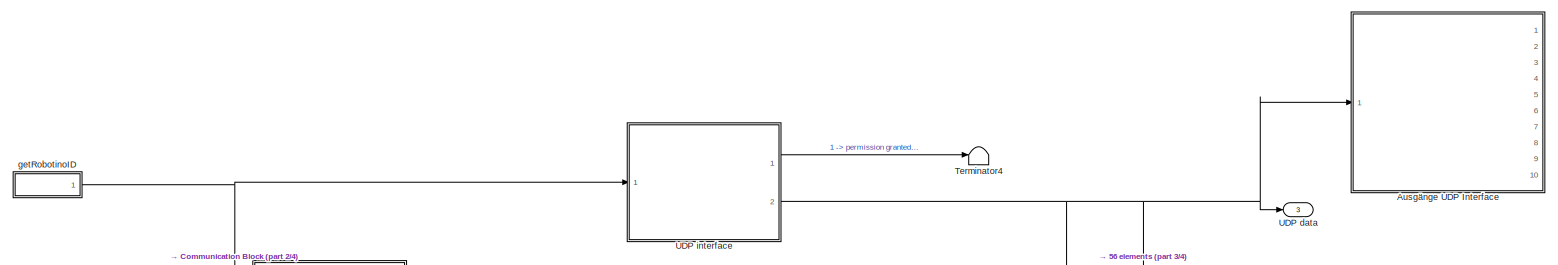
[diagram: root canvas - part 1/4, full width, top band]
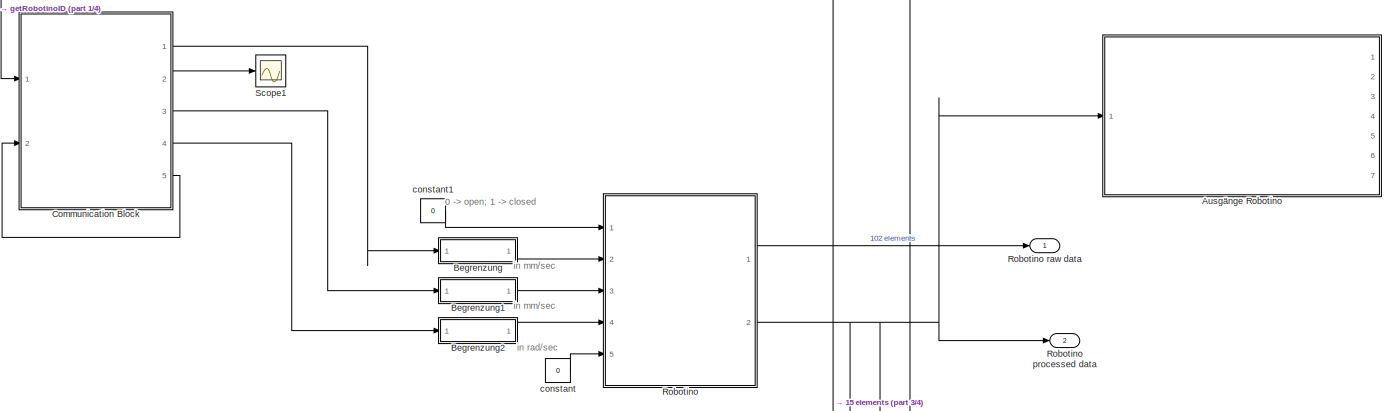
[diagram: root canvas - part 2/4, full width, middle band]
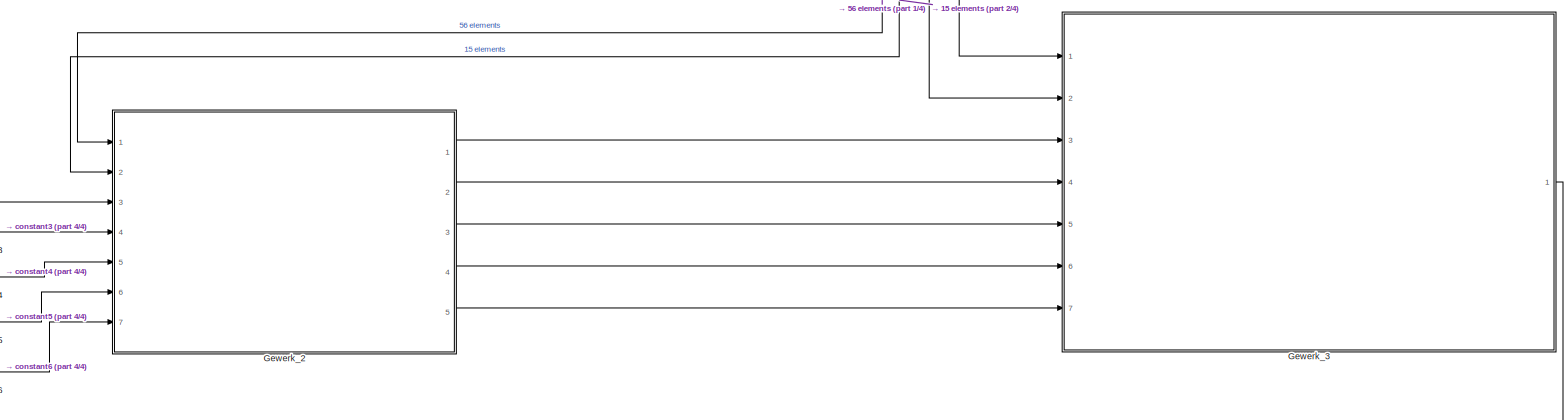
[diagram: root canvas - part 3/4, full width, bottom band]
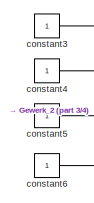
[diagram: root canvas - part 4/4, bottom left region]
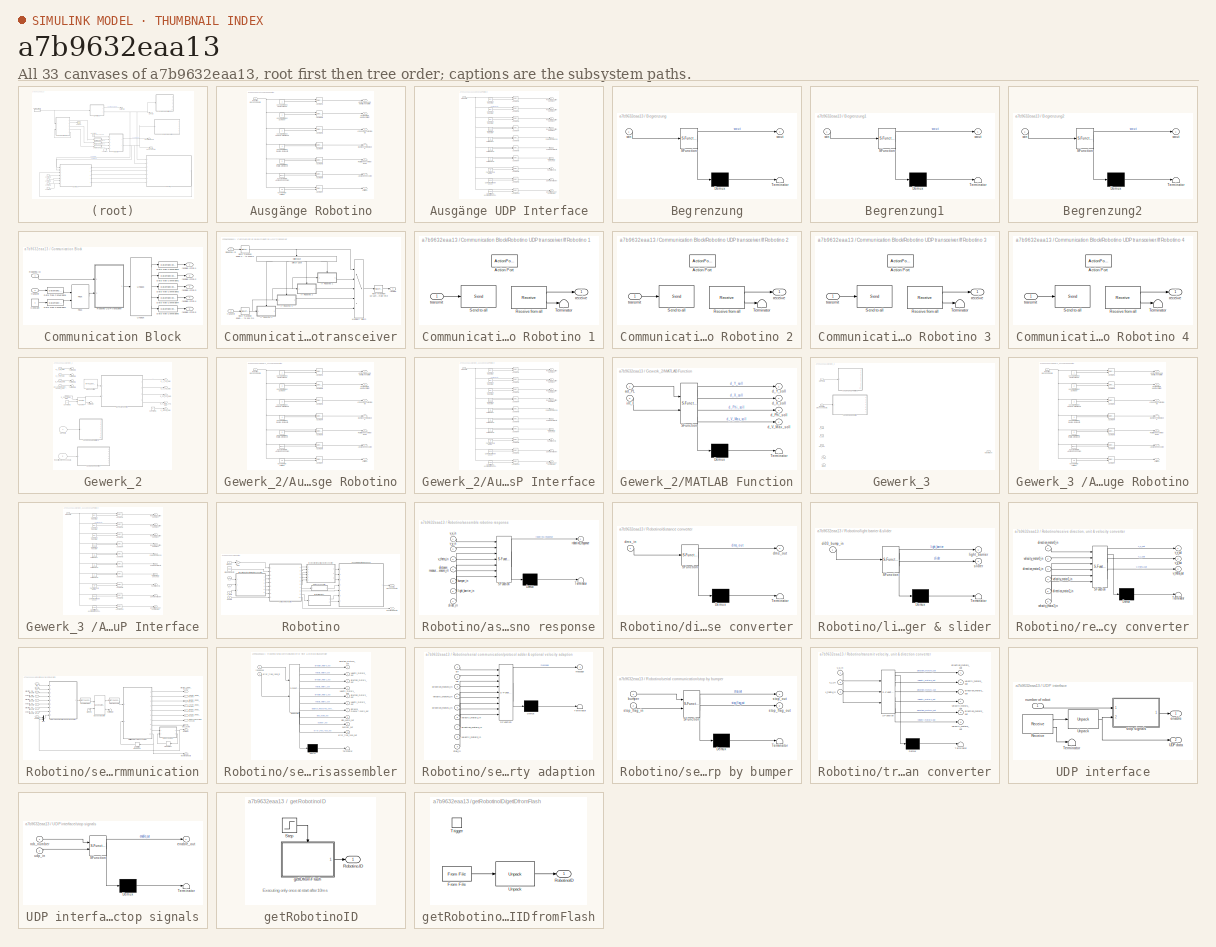
[diagram: thumbnail index - all 33 canvases of the model, root first then tree order]
MODEL slx_a7b9632eaa13
KIND model
CONFIG AbsTol = auto
CONFIG FixedStep = 0.005
CONFIG MaxStep = auto
CONFIG MinStep = auto
CONFIG RelTol = 1e-3
CONFIG SampleTimeConstraint = Unconstrained
CONFIG Solver = ode3
CONFIG SolverMode = Auto
CONFIG SolverName = ode3
CONFIG StartTime = 0.0
CONFIG StopTime = inf
BLOCK [SubSystem] Ausgänge Robotino
  Ports = [1, 7]
  RequestExecContextInheritance = off
  Variant = off
BLOCK [Outport] Ausgänge Robotino/Abstandssensoren
  IconDisplay = Port number
  Port = 6
BLOCK [Selector] Ausgänge Robotino/Auswahl1
  IndexOptions = Index vector (port)
  Indices = [1 3]
  InputPortWidth = 15
  OutputSizes = 1
  Ports = [2, 1]
BLOCK [Selector] Ausgänge Robotino/Auswahl2
  IndexOptions = Index vector (port)
  Indices = [1 3]
  InputPortWidth = 15
  OutputSizes = 1
  Ports = [2, 1]
BLOCK [Selector] Ausgänge Robotino/Auswahl3
  IndexOptions = Index vector (port)
  Indices = [1 3]
  InputPortWidth = 15
  OutputSizes = 1
  Ports = [2, 1]
BLOCK [Selector] Ausgänge Robotino/Auswahl4
  IndexOptions = Index vector (port)
  Indices = [1 3]
  InputPortWidth = 15
  OutputSizes = 1
  Ports = [2, 1]
BLOCK [Selector] Ausgänge Robotino/Auswahl5
  IndexOptions = Index vector (port)
  Indices = [1 3]
  InputPortWidth = 15
  OutputSizes = 1
  Ports = [2, 1]
BLOCK [Selector] Ausgänge Robotino/Auswahl6
  IndexOptions = Index vector (port)
  Indices = [1 3]
  InputPortWidth = 15
  OutputSizes = 1
  Ports = [2, 1]
BLOCK [Selector] Ausgänge Robotino/Auswahl7
  IndexOptions = Index vector (port)
  Indices = [1 3]
  InputPortWidth = 15
  OutputSizes = 1
  Ports = [2, 1]
BLOCK [Outport] Ausgänge Robotino/Kollision
  IconDisplay = Port number
  Port = 7
BLOCK [Constant] Ausgänge Robotino/Konstante für Kollision 
  Value = 15
BLOCK [Constant] Ausgänge Robotino/Konstante für den Lichtschranke
BLOCK [Constant] Ausgänge Robotino/Konstante für den Längsgeschwindigkeit
  Value = 3
BLOCK [Constant] Ausgänge Robotino/Konstante für den Quergeschwindigkeit1
  Value = 4
BLOCK [Constant] Ausgänge Robotino/Konstante für den Rotationegeschwindigkeit
  Value = 5
BLOCK [Constant] Ausgänge Robotino/Konstante für den Schieber
  Value = 2
BLOCK [Constant] Ausgänge Robotino/Konstante für die Abstandssensoren
  Value = [6:14]
BLOCK [Outport] Ausgänge Robotino/Lichtschranke am elektrischen Greifer
  IconDisplay = Port number
BLOCK [Outport] Ausgänge Robotino/Längsgeschwindigkeit 
  IconDisplay = Port number
  Port = 3
BLOCK [Outport] Ausgänge Robotino/Quergeschwindigkeit
  IconDisplay = Port number
  Port = 4
BLOCK [Inport] Ausgänge Robotino/Robotino processed data
  IconDisplay = Port number
BLOCK [Outport] Ausgänge Robotino/Rotationgeschwindigkeit 
  IconDisplay = Port number
  Port = 5
BLOCK [Outport] Ausgänge Robotino/Schieber am elektrischen Griefer 
  IconDisplay = Port number
  Port = 2
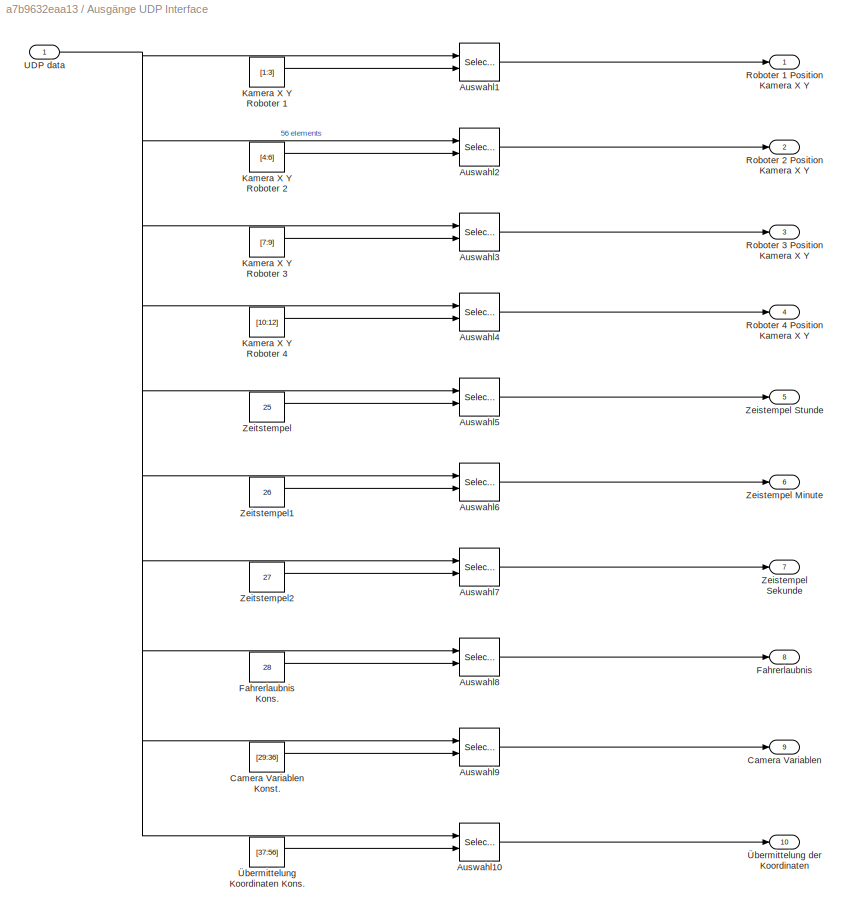
BLOCK [SubSystem] Ausgänge UDP Interface
  Ports = [1, 10]
  RequestExecContextInheritance = off
  Variant = off
BLOCK [Selector] Ausgänge UDP Interface/Auswahl1
  IndexOptions = Index vector (port)
  Indices = [1 3]
  InputPortWidth = 56
  OutputSizes = 1
  Ports = [2, 1]
BLOCK [Selector] Ausgänge UDP Interface/Auswahl10
  IndexOptions = Index vector (port)
  Indices = [1 3]
  InputPortWidth = 56
  OutputSizes = 1
  Ports = [2, 1]
BLOCK [Selector] Ausgänge UDP Interface/Auswahl2
  IndexOptions = Index vector (port)
  Indices = [1 3]
  InputPortWidth = 56
  OutputSizes = 1
  Ports = [2, 1]
BLOCK [Selector] Ausgänge UDP Interface/Auswahl3
  IndexOptions = Index vector (port)
  Indices = [1 3]
  InputPortWidth = 56
  OutputSizes = 1
  Ports = [2, 1]
BLOCK [Selector] Ausgänge UDP Interface/Auswahl4
  IndexOptions = Index vector (port)
  Indices = [1 3]
  InputPortWidth = 56
  OutputSizes = 1
  Ports = [2, 1]
BLOCK [Selector] Ausgänge UDP Interface/Auswahl5
  IndexOptions = Index vector (port)
  Indices = [1 3]
  InputPortWidth = 56
  OutputSizes = 1
  Ports = [2, 1]
BLOCK [Selector] Ausgänge UDP Interface/Auswahl6
  IndexOptions = Index vector (port)
  Indices = [1 3]
  InputPortWidth = 56
  OutputSizes = 1
  Ports = [2, 1]
BLOCK [Selector] Ausgänge UDP Interface/Auswahl7
  IndexOptions = Index vector (port)
  Indices = [1 3]
  InputPortWidth = 56
  OutputSizes = 1
  Ports = [2, 1]
BLOCK [Selector] Ausgänge UDP Interface/Auswahl8
  IndexOptions = Index vector (port)
  Indices = [1 3]
  InputPortWidth = 56
  OutputSizes = 1
  Ports = [2, 1]
BLOCK [Selector] Ausgänge UDP Interface/Auswahl9
  IndexOptions = Index vector (port)
  Indices = [1 3]
  InputPortWidth = 56
  OutputSizes = 1
  Ports = [2, 1]
BLOCK [Outport] Ausgänge UDP Interface/Camera Variablen
  IconDisplay = Port number
  Port = 9
BLOCK [Constant] Ausgänge UDP Interface/Camera Variablen Konst.
  Value = [29:36]
BLOCK [Outport] Ausgänge UDP Interface/Fahrerlaubnis
  IconDisplay = Port number
  Port = 8
BLOCK [Constant] Ausgänge UDP Interface/Fahrerlaubnis Kons.
  Value = 28
BLOCK [Constant] Ausgänge UDP Interface/Kamera X Y Roboter 1
  Value = [1:3]
BLOCK [Constant] Ausgänge UDP Interface/Kamera X Y Roboter 2
  Value = [4:6]
BLOCK [Constant] Ausgänge UDP Interface/Kamera X Y Roboter 3
  Value = [7:9]
BLOCK [Constant] Ausgänge UDP Interface/Kamera X Y Roboter 4
  Value = [10:12]
BLOCK [Outport] Ausgänge UDP Interface/Roboter 1 Position Kamera X Y
  IconDisplay = Port number
BLOCK [Outport] Ausgänge UDP Interface/Roboter 2 Position Kamera X Y
  IconDisplay = Port number
  Port = 2
BLOCK [Outport] Ausgänge UDP Interface/Roboter 3 Position Kamera X Y
  IconDisplay = Port number
  Port = 3
BLOCK [Outport] Ausgänge UDP Interface/Roboter 4 Position Kamera X Y
  IconDisplay = Port number
  Port = 4
BLOCK [Inport] Ausgänge UDP Interface/UDP data
  IconDisplay = Port number
BLOCK [Outport] Ausgänge UDP Interface/Zeistempel Minute
  IconDisplay = Port number
  Port = 6
BLOCK [Outport] Ausgänge UDP Interface/Zeistempel Sekunde
  IconDisplay = Port number
  Port = 7
BLOCK [Outport] Ausgänge UDP Interface/Zeistempel Stunde
  IconDisplay = Port number
  Port = 5
BLOCK [Constant] Ausgänge UDP Interface/Zeitstempel
  Value = 25
BLOCK [Constant] Ausgänge UDP Interface/Zeitstempel1
  Value = 26
BLOCK [Constant] Ausgänge UDP Interface/Zeitstempel2
  Value = 27
BLOCK [Constant] Ausgänge UDP Interface/Übermittelung Koordinaten Kons.
  Value = [37:56]
BLOCK [Outport] Ausgänge UDP Interface/Übermittelung der Koordinaten
  IconDisplay = Port number
  Port = 10
BLOCK [SubSystem] Begrenzung
  ErrorFcn = Stateflow.Translate.translate
  PermitHierarchicalResolution = ExplicitOnly
  Ports = [1, 1]
  RequestExecContextInheritance = off
  SFBlockType = MATLAB Function
  TreatAsAtomicUnit = on
  Variant = off
BLOCK [Demux] Begrenzung/ Demux 
  Outputs = 1
  Ports = [1, 1]
BLOCK [S-Function] Begrenzung/ SFunction 
  EnableBusSupport = off
  FunctionName = sf_sfun
  PortCounts = [1 2]
  Ports = [1, 2]
  SFunctionDeploymentMode = off
  Tag = Stateflow S-Function Main 6
BLOCK [Terminator] Begrenzung/ Terminator 
BLOCK [Inport] Begrenzung/win
  IconDisplay = Port number
BLOCK [Outport] Begrenzung/wout
  IconDisplay = Port number
BLOCK [SubSystem] Begrenzung1
  ErrorFcn = Stateflow.Translate.translate
  PermitHierarchicalResolution = ExplicitOnly
  Ports = [1, 1]
  RequestExecContextInheritance = off
  SFBlockType = MATLAB Function
  TreatAsAtomicUnit = on
  Variant = off
BLOCK [Demux] Begrenzung1/ Demux 
  Outputs = 1
  Ports = [1, 1]
BLOCK [S-Function] Begrenzung1/ SFunction 
  EnableBusSupport = off
  FunctionName = sf_sfun
  PortCounts = [1 2]
  Ports = [1, 2]
  SFunctionDeploymentMode = off
  Tag = Stateflow S-Function Main 11
BLOCK [Terminator] Begrenzung1/ Terminator 
BLOCK [Inport] Begrenzung1/win
  IconDisplay = Port number
BLOCK [Outport] Begrenzung1/wout
  IconDisplay = Port number
BLOCK [SubSystem] Begrenzung2
  ErrorFcn = Stateflow.Translate.translate
  PermitHierarchicalResolution = ExplicitOnly
  Ports = [1, 1]
  RequestExecContextInheritance = off
  SFBlockType = MATLAB Function
  TreatAsAtomicUnit = on
  Variant = off
BLOCK [Demux] Begrenzung2/ Demux 
  Outputs = 1
  Ports = [1, 1]
BLOCK [S-Function] Begrenzung2/ SFunction 
  EnableBusSupport = off
  FunctionName = sf_sfun
  PortCounts = [1 2]
  Ports = [1, 2]
  SFunctionDeploymentMode = off
  Tag = Stateflow S-Function Main 12
BLOCK [Terminator] Begrenzung2/ Terminator 
BLOCK [Inport] Begrenzung2/win
  IconDisplay = Port number
BLOCK [Outport] Begrenzung2/wout
  IconDisplay = Port number
BLOCK [SubSystem] Communication Block
  Ports = [2, 5]
  RequestExecContextInheritance = off
  Variant = off
BLOCK [Constant] Communication Block/Constant
BLOCK [DataTypeConversion] Communication Block/Data Type Conversion1
  OutDataTypeStr = double
  RndMeth = Floor
  SaturateOnIntegerOverflow = off
BLOCK [DataTypeConversion] Communication Block/Data Type Conversion2
  OutDataTypeStr = double
  RndMeth = Floor
  SaturateOnIntegerOverflow = off
BLOCK [DataTypeConversion] Communication Block/Data Type Conversion3
  OutDataTypeStr = double
  RndMeth = Floor
  SaturateOnIntegerOverflow = off
BLOCK [DataTypeConversion] Communication Block/Data Type Conversion4
  OutDataTypeStr = double
  RndMeth = Floor
  SaturateOnIntegerOverflow = off
BLOCK [DataTypeConversion] Communication Block/Data Type Conversion5
  OutDataTypeStr = uint32
  RndMeth = Floor
  SaturateOnIntegerOverflow = off
BLOCK [DataTypeConversion] Communication Block/Data Type Conversion6
  OutDataTypeStr = int16
  RndMeth = Floor
  SaturateOnIntegerOverflow = off
BLOCK [DataTypeConversion] Communication Block/Data Type Conversion7
  OutDataTypeStr = int16
  RndMeth = Floor
  SaturateOnIntegerOverflow = off
BLOCK [Reference] Communication Block/Pack  REF=slrtlib/UDP/Pack 
  Ports = [2, 1]
  SourceBlock = slrtlib/UDP/Pack
  SourceType = xpcany2byte
BLOCK [SubSystem] Communication Block/Robotino UDP transceiver
  Ports = [2, 1]
  RequestExecContextInheritance = off
  Variant = off
BLOCK [SubSystem] Communication Block/Robotino UDP transceiver/If Robotino 1
  Ports = [1, 1, 0, 0, 0, 0, 0, 1]
  RequestExecContextInheritance = off
  TreatAsAtomicUnit = on
  Variant = off
BLOCK [ActionPort] Communication Block/Robotino UDP transceiver/If Robotino 1/Action Port
  ActionType = case
BLOCK [Reference] Communication Block/Robotino UDP transceiver/If Robotino 1/Receive from all  REF=slrtlib/UDP/Receive 
  Ports = [0, 2]
  SourceBlock = slrtlib/UDP/Receive
  SourceType = xpcudpbytereceive
BLOCK [Reference] Communication Block/Robotino UDP transceiver/If Robotino 1/Send to all  REF=slrtlib/UDP/Send 
  Ports = [1]
  SourceBlock = slrtlib/UDP/Send
  SourceType = xpcudpbytesend
BLOCK [Terminator] Communication Block/Robotino UDP transceiver/If Robotino 1/Terminator
BLOCK [Outport] Communication Block/Robotino UDP transceiver/If Robotino 1/receive
  IconDisplay = Port number
BLOCK [Inport] Communication Block/Robotino UDP transceiver/If Robotino 1/transmit
  IconDisplay = Port number
BLOCK [SubSystem] Communication Block/Robotino UDP transceiver/If Robotino 2
  Ports = [1, 1, 0, 0, 0, 0, 0, 1]
  RequestExecContextInheritance = off
  TreatAsAtomicUnit = on
  Variant = off
BLOCK [ActionPort] Communication Block/Robotino UDP transceiver/If Robotino 2/Action Port
  ActionType = case
BLOCK [Reference] Communication Block/Robotino UDP transceiver/If Robotino 2/Receive from all  REF=slrtlib/UDP/Receive 
  Ports = [0, 2]
  SourceBlock = slrtlib/UDP/Receive
  SourceType = xpcudpbytereceive
BLOCK [Reference] Communication Block/Robotino UDP transceiver/If Robotino 2/Send to all  REF=slrtlib/UDP/Send 
  Ports = [1]
  SourceBlock = slrtlib/UDP/Send
  SourceType = xpcudpbytesend
BLOCK [Terminator] Communication Block/Robotino UDP transceiver/If Robotino 2/Terminator
BLOCK [Outport] Communication Block/Robotino UDP transceiver/If Robotino 2/receive
  IconDisplay = Port number
BLOCK [Inport] Communication Block/Robotino UDP transceiver/If Robotino 2/transmit
  IconDisplay = Port number
BLOCK [SubSystem] Communication Block/Robotino UDP transceiver/If Robotino 3
  Ports = [1, 1, 0, 0, 0, 0, 0, 1]
  RequestExecContextInheritance = off
  TreatAsAtomicUnit = on
  Variant = off
BLOCK [ActionPort] Communication Block/Robotino UDP transceiver/If Robotino 3/Action Port
  ActionType = case
BLOCK [Reference] Communication Block/Robotino UDP transceiver/If Robotino 3/Receive from all  REF=slrtlib/UDP/Receive 
  Ports = [0, 2]
  SourceBlock = slrtlib/UDP/Receive
  SourceType = xpcudpbytereceive
BLOCK [Reference] Communication Block/Robotino UDP transceiver/If Robotino 3/Send to all  REF=slrtlib/UDP/Send 
  Ports = [1]
  SourceBlock = slrtlib/UDP/Send
  SourceType = xpcudpbytesend
BLOCK [Terminator] Communication Block/Robotino UDP transceiver/If Robotino 3/Terminator
BLOCK [Outport] Communication Block/Robotino UDP transceiver/If Robotino 3/receive
  IconDisplay = Port number
BLOCK [Inport] Communication Block/Robotino UDP transceiver/If Robotino 3/transmit
  IconDisplay = Port number
BLOCK [SubSystem] Communication Block/Robotino UDP transceiver/If Robotino 4
  Ports = [1, 1, 0, 0, 0, 0, 0, 1]
  RequestExecContextInheritance = off
  TreatAsAtomicUnit = on
  Variant = off
BLOCK [ActionPort] Communication Block/Robotino UDP transceiver/If Robotino 4/Action Port
  ActionType = case
BLOCK [Reference] Communication Block/Robotino UDP transceiver/If Robotino 4/Receive from all  REF=slrtlib/UDP/Receive 
  Ports = [0, 2]
  SourceBlock = slrtlib/UDP/Receive
  SourceType = xpcudpbytereceive
BLOCK [Reference] Communication Block/Robotino UDP transceiver/If Robotino 4/Send to all  REF=slrtlib/UDP/Send 
  Ports = [1]
  SourceBlock = slrtlib/UDP/Send
  SourceType = xpcudpbytesend
BLOCK [Terminator] Communication Block/Robotino UDP transceiver/If Robotino 4/Terminator
BLOCK [Outport] Communication Block/Robotino UDP transceiver/If Robotino 4/receive
  IconDisplay = Port number
BLOCK [Inport] Communication Block/Robotino UDP transceiver/If Robotino 4/transmit
  IconDisplay = Port number
BLOCK [MultiPortSwitch] Communication Block/Robotino UDP transceiver/Multiport Switch
  InputSameDT = off
  Inputs = 4
  Ports = [5, 1]
  SaturateOnIntegerOverflow = off
BLOCK [RateTransition] Communication Block/Robotino UDP transceiver/Rate Transition down-sampling to 500 ms
  OutPortSampleTime = 0.5
BLOCK [RateTransition] Communication Block/Robotino UDP transceiver/Rate Transition down-sampling to 500ms
  OutPortSampleTime = 0.5
BLOCK [RateTransition] Communication Block/Robotino UDP transceiver/Rate Transition up-sampling to fundamental sample time
BLOCK [Inport] Communication Block/Robotino UDP transceiver/Robotino.ID
  IconDisplay = Port number
BLOCK [SwitchCase] Communication Block/Robotino UDP transceiver/Switch Case
  CaseConditions = {4,3,2,1}
  Ports = [1, 4]
  ShowDefaultCase = off
BLOCK [Outport] Communication Block/Robotino UDP transceiver/receive
  IconDisplay = Port number
BLOCK [Inport] Communication Block/Robotino UDP transceiver/transmit
  IconDisplay = Port number
  Port = 2
BLOCK [Inport] Communication Block/Robotino.ID
  IconDisplay = Port number
BLOCK [Reference] Communication Block/Unpack  REF=slrtlib/UDP/Unpack 
  Ports = [1, 5]
  SourceBlock = slrtlib/UDP/Unpack
  SourceType = xpcbyte2any
BLOCK [Outport] Communication Block/receive Int32-1
  IconDisplay = Port number
BLOCK [Outport] Communication Block/receive Int32-2
  IconDisplay = Port number
  Port = 2
BLOCK [Outport] Communication Block/receive Int32-3
  IconDisplay = Port number
  Port = 3
BLOCK [Outport] Communication Block/receive Int32-4
  IconDisplay = Port number
  Port = 4
BLOCK [Outport] Communication Block/receive Int32-5
  IconDisplay = Port number
  Port = 5
BLOCK [Inport] Communication Block/transmit
  IconDisplay = Port number
  Port = 2
BLOCK [SubSystem] Gewerk_2
  Ports = [7, 5]
  RequestExecContextInheritance = off
  Variant = off
BLOCK [SubSystem] Gewerk_2/Ausgänge Robotino
  Ports = [1, 7]
  RequestExecContextInheritance = off
  Variant = off
BLOCK [Outport] Gewerk_2/Ausgänge Robotino/Abstandssensoren
  IconDisplay = Port number
  Port = 6
BLOCK [Selector] Gewerk_2/Ausgänge Robotino/Auswahl1
  IndexOptions = Index vector (port)
  Indices = [1 3]
  InputPortWidth = 15
  OutputSizes = 1
  Ports = [2, 1]
BLOCK [Selector] Gewerk_2/Ausgänge Robotino/Auswahl2
  IndexOptions = Index vector (port)
  Indices = [1 3]
  InputPortWidth = 15
  OutputSizes = 1
  Ports = [2, 1]
BLOCK [Selector] Gewerk_2/Ausgänge Robotino/Auswahl3
  IndexOptions = Index vector (port)
  Indices = [1 3]
  InputPortWidth = 15
  OutputSizes = 1
  Ports = [2, 1]
BLOCK [Selector] Gewerk_2/Ausgänge Robotino/Auswahl4
  IndexOptions = Index vector (port)
  Indices = [1 3]
  InputPortWidth = 15
  OutputSizes = 1
  Ports = [2, 1]
BLOCK [Selector] Gewerk_2/Ausgänge Robotino/Auswahl5
  IndexOptions = Index vector (port)
  Indices = [1 3]
  InputPortWidth = 15
  OutputSizes = 1
  Ports = [2, 1]
BLOCK [Selector] Gewerk_2/Ausgänge Robotino/Auswahl6
  IndexOptions = Index vector (port)
  Indices = [1 3]
  InputPortWidth = 15
  OutputSizes = 1
  Ports = [2, 1]
BLOCK [Selector] Gewerk_2/Ausgänge Robotino/Auswahl7
  IndexOptions = Index vector (port)
  Indices = [1 3]
  InputPortWidth = 15
  OutputSizes = 1
  Ports = [2, 1]
BLOCK [Outport] Gewerk_2/Ausgänge Robotino/Kollision
  IconDisplay = Port number
  Port = 7
BLOCK [Constant] Gewerk_2/Ausgänge Robotino/Konstante für Kollision 
  Value = 15
BLOCK [Constant] Gewerk_2/Ausgänge Robotino/Konstante für den Lichtschranke
BLOCK [Constant] Gewerk_2/Ausgänge Robotino/Konstante für den Längsgeschwindigkeit
  Value = 3
BLOCK [Constant] Gewerk_2/Ausgänge Robotino/Konstante für den Quergeschwindigkeit1
  Value = 4
BLOCK [Constant] Gewerk_2/Ausgänge Robotino/Konstante für den Rotationegeschwindigkeit
  Value = 5
BLOCK [Constant] Gewerk_2/Ausgänge Robotino/Konstante für den Schieber
  Value = 2
BLOCK [Constant] Gewerk_2/Ausgänge Robotino/Konstante für die Abstandssensoren
  Value = [6:14]
BLOCK [Outport] Gewerk_2/Ausgänge Robotino/Lichtschranke am elektrischen Greifer
  IconDisplay = Port number
BLOCK [Outport] Gewerk_2/Ausgänge Robotino/Längsgeschwindigkeit 
  IconDisplay = Port number
  Port = 3
BLOCK [Outport] Gewerk_2/Ausgänge Robotino/Quergeschwindigkeit
  IconDisplay = Port number
  Port = 4
BLOCK [Inport] Gewerk_2/Ausgänge Robotino/Robotino processed data
  IconDisplay = Port number
BLOCK [Outport] Gewerk_2/Ausgänge Robotino/Rotationgeschwindigkeit 
  IconDisplay = Port number
  Port = 5
BLOCK [Outport] Gewerk_2/Ausgänge Robotino/Schieber am elektrischen Griefer 
  IconDisplay = Port number
  Port = 2
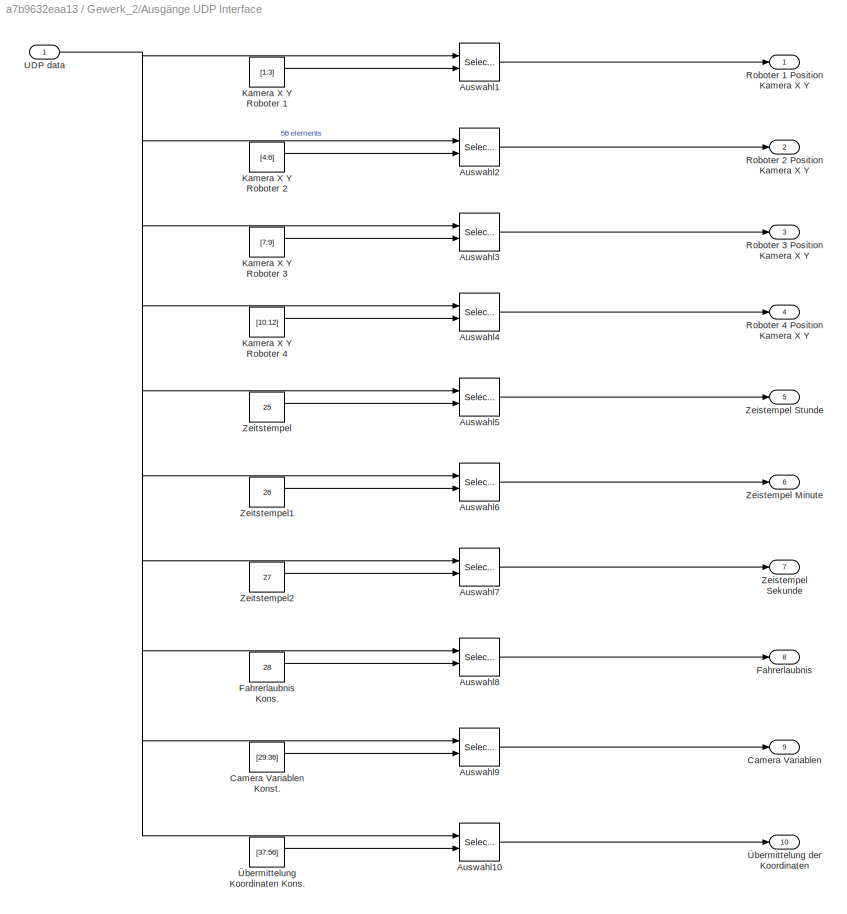
BLOCK [SubSystem] Gewerk_2/Ausgänge UDP Interface
  Ports = [1, 10]
  RequestExecContextInheritance = off
  Variant = off
BLOCK [Selector] Gewerk_2/Ausgänge UDP Interface/Auswahl1
  IndexOptions = Index vector (port)
  Indices = [1 3]
  InputPortWidth = 56
  OutputSizes = 1
  Ports = [2, 1]
BLOCK [Selector] Gewerk_2/Ausgänge UDP Interface/Auswahl10
  IndexOptions = Index vector (port)
  Indices = [1 3]
  InputPortWidth = 56
  OutputSizes = 1
  Ports = [2, 1]
BLOCK [Selector] Gewerk_2/Ausgänge UDP Interface/Auswahl2
  IndexOptions = Index vector (port)
  Indices = [1 3]
  InputPortWidth = 56
  OutputSizes = 1
  Ports = [2, 1]
BLOCK [Selector] Gewerk_2/Ausgänge UDP Interface/Auswahl3
  IndexOptions = Index vector (port)
  Indices = [1 3]
  InputPortWidth = 56
  OutputSizes = 1
  Ports = [2, 1]
BLOCK [Selector] Gewerk_2/Ausgänge UDP Interface/Auswahl4
  IndexOptions = Index vector (port)
  Indices = [1 3]
  InputPortWidth = 56
  OutputSizes = 1
  Ports = [2, 1]
BLOCK [Selector] Gewerk_2/Ausgänge UDP Interface/Auswahl5
  IndexOptions = Index vector (port)
  Indices = [1 3]
  InputPortWidth = 56
  OutputSizes = 1
  Ports = [2, 1]
BLOCK [Selector] Gewerk_2/Ausgänge UDP Interface/Auswahl6
  IndexOptions = Index vector (port)
  Indices = [1 3]
  InputPortWidth = 56
  OutputSizes = 1
  Ports = [2, 1]
BLOCK [Selector] Gewerk_2/Ausgänge UDP Interface/Auswahl7
  IndexOptions = Index vector (port)
  Indices = [1 3]
  InputPortWidth = 56
  OutputSizes = 1
  Ports = [2, 1]
BLOCK [Selector] Gewerk_2/Ausgänge UDP Interface/Auswahl8
  IndexOptions = Index vector (port)
  Indices = [1 3]
  InputPortWidth = 56
  OutputSizes = 1
  Ports = [2, 1]
BLOCK [Selector] Gewerk_2/Ausgänge UDP Interface/Auswahl9
  IndexOptions = Index vector (port)
  Indices = [1 3]
  InputPortWidth = 56
  OutputSizes = 1
  Ports = [2, 1]
BLOCK [Outport] Gewerk_2/Ausgänge UDP Interface/Camera Variablen
  IconDisplay = Port number
  Port = 9
BLOCK [Constant] Gewerk_2/Ausgänge UDP Interface/Camera Variablen Konst.
  Value = [29:36]
BLOCK [Outport] Gewerk_2/Ausgänge UDP Interface/Fahrerlaubnis
  IconDisplay = Port number
  Port = 8
BLOCK [Constant] Gewerk_2/Ausgänge UDP Interface/Fahrerlaubnis Kons.
  Value = 28
BLOCK [Constant] Gewerk_2/Ausgänge UDP Interface/Kamera X Y Roboter 1
  Value = [1:3]
BLOCK [Constant] Gewerk_2/Ausgänge UDP Interface/Kamera X Y Roboter 2
  Value = [4:6]
BLOCK [Constant] Gewerk_2/Ausgänge UDP Interface/Kamera X Y Roboter 3
  Value = [7:9]
BLOCK [Constant] Gewerk_2/Ausgänge UDP Interface/Kamera X Y Roboter 4
  Value = [10:12]
BLOCK [Outport] Gewerk_2/Ausgänge UDP Interface/Roboter 1 Position Kamera X Y
  IconDisplay = Port number
BLOCK [Outport] Gewerk_2/Ausgänge UDP Interface/Roboter 2 Position Kamera X Y
  IconDisplay = Port number
  Port = 2
BLOCK [Outport] Gewerk_2/Ausgänge UDP Interface/Roboter 3 Position Kamera X Y
  IconDisplay = Port number
  Port = 3
BLOCK [Outport] Gewerk_2/Ausgänge UDP Interface/Roboter 4 Position Kamera X Y
  IconDisplay = Port number
  Port = 4
BLOCK [Inport] Gewerk_2/Ausgänge UDP Interface/UDP data
  IconDisplay = Port number
BLOCK [Outport] Gewerk_2/Ausgänge UDP Interface/Zeistempel Minute
  IconDisplay = Port number
  Port = 6
BLOCK [Outport] Gewerk_2/Ausgänge UDP Interface/Zeistempel Sekunde
  IconDisplay = Port number
  Port = 7
BLOCK [Outport] Gewerk_2/Ausgänge UDP Interface/Zeistempel Stunde
  IconDisplay = Port number
  Port = 5
BLOCK [Constant] Gewerk_2/Ausgänge UDP Interface/Zeitstempel
  Value = 25
BLOCK [Constant] Gewerk_2/Ausgänge UDP Interface/Zeitstempel1
  Value = 26
BLOCK [Constant] Gewerk_2/Ausgänge UDP Interface/Zeitstempel2
  Value = 27
BLOCK [Constant] Gewerk_2/Ausgänge UDP Interface/Übermittelung Koordinaten Kons.
  Value = [37:56]
BLOCK [Outport] Gewerk_2/Ausgänge UDP Interface/Übermittelung der Koordinaten
  IconDisplay = Port number
  Port = 10
BLOCK [Constant] Gewerk_2/Constant1
  OutDataTypeStr = boolean
  Value = 0
BLOCK [Constant] Gewerk_2/Constant2
  Value = 0
BLOCK [Reference] Gewerk_2/Counter  REF=dspswit3/Counter
  Ports = [2, 2]
  SourceBlock = dspswit3/Counter
  SourceType = Counter
BLOCK [SubSystem] Gewerk_2/MATLAB Function
  ErrorFcn = Stateflow.Translate.translate
  PermitHierarchicalResolution = ExplicitOnly
  Ports = [2, 4]
  RequestExecContextInheritance = off
  SFBlockType = MATLAB Function
  TreatAsAtomicUnit = on
  Variant = off
BLOCK [Demux] Gewerk_2/MATLAB Function/ Demux 
  Outputs = 1
  Ports = [1, 1]
BLOCK [S-Function] Gewerk_2/MATLAB Function/ SFunction 
  EnableBusSupport = off
  FunctionName = sf_sfun
  PortCounts = [2 5]
  Ports = [2, 5]
  SFunctionDeploymentMode = off
  Tag = Stateflow S-Function Main 14
BLOCK [Terminator] Gewerk_2/MATLAB Function/ Terminator 
BLOCK [Inport] Gewerk_2/MATLAB Function/ad_PL
  IconDisplay = Port number
BLOCK [Outport] Gewerk_2/MATLAB Function/d_Phi_soll
  IconDisplay = Port number
  Port = 3
BLOCK [Outport] Gewerk_2/MATLAB Function/d_V_Max_soll
  IconDisplay = Port number
  Port = 4
BLOCK [Outport] Gewerk_2/MATLAB Function/d_X_soll
  IconDisplay = Port number
  Port = 2
BLOCK [Outport] Gewerk_2/MATLAB Function/d_Y_soll
  IconDisplay = Port number
BLOCK [Inport] Gewerk_2/MATLAB Function/int_I
  IconDisplay = Port number
  Port = 2
BLOCK [Inport] Gewerk_2/Robotiino processed data
  IconDisplay = Port number
  Port = 2
BLOCK [Terminator] Gewerk_2/Terminator
BLOCK [Terminator] Gewerk_2/Terminator1
BLOCK [Terminator] Gewerk_2/Terminator2
BLOCK [Terminator] Gewerk_2/Terminator3
BLOCK [Terminator] Gewerk_2/Terminator4
BLOCK [Inport] Gewerk_2/UDP data
  IconDisplay = Port number
BLOCK [Constant] Gewerk_2/Wegpunktliste
  OutDataTypeStr = double
  Value = [4775 1800 180 300 ; 3745 1800 180 300; 2540 2100 180 300; 2160 2100 180 300; 1678 1894 180 300; 1373 1846 180 300; 1155 1627 180 300; 1106 1321 180 300; 1246 1046 180 300; 1522 906 180 300; 1827 954 180 300; 2300 954 180 300; 2800 1500 180 300; 3300 1000 180 300; 3800 1500 180 300; 4300 1000 180 300; 4800 1500 180 300 ]
BLOCK [Inport] Gewerk_2/ad_Kameradaten_andere_robis
  IconDisplay = Port number
  OutDataTypeStr = double
  Port = 7
BLOCK [Outport] Gewerk_2/b_Stopbit_GW3 
  IconDisplay = Port number
  OutDataTypeStr = boolean
  Port = 5
BLOCK [Inport] Gewerk_2/b_next_Daten_GW3
  IconDisplay = Port number
  OutDataTypeStr = boolean
  Port = 3
BLOCK [Inport] Gewerk_2/d_Phi_ist_GW3
  IconDisplay = Port number
  OutDataTypeStr = double
  Port = 6
BLOCK [Outport] Gewerk_2/d_Phi_soll_GW3
  IconDisplay = Port number
  OutDataTypeStr = double
  Port = 3
BLOCK [Outport] Gewerk_2/d_V_Max_soll_GW3
  IconDisplay = Port number
  OutDataTypeStr = double
  Port = 4
BLOCK [Inport] Gewerk_2/d_X_ist_GW3
  IconDisplay = Port number
  OutDataTypeStr = double
  Port = 5
BLOCK [Outport] Gewerk_2/d_X_soll_GW3
  IconDisplay = Port number
  OutDataTypeStr = double
  Port = 2
BLOCK [Inport] Gewerk_2/d_Y_ist_GW3
  IconDisplay = Port number
  OutDataTypeStr = double
  Port = 4
BLOCK [Outport] Gewerk_2/d_Y_soll_GW3
  IconDisplay = Port number
  OutDataTypeStr = double
BLOCK [SubSystem] Gewerk_3 
  Ports = [7, 1]
  RequestExecContextInheritance = off
  Variant = off
BLOCK [SubSystem] Gewerk_3 /Ausgänge Robotino
  Ports = [1, 7]
  RequestExecContextInheritance = off
  Variant = off
BLOCK [Outport] Gewerk_3 /Ausgänge Robotino/Abstandssensoren
  IconDisplay = Port number
  Port = 6
BLOCK [Selector] Gewerk_3 /Ausgänge Robotino/Auswahl1
  IndexOptions = Index vector (port)
  Indices = [1 3]
  InputPortWidth = 15
  OutputSizes = 1
  Ports = [2, 1]
BLOCK [Selector] Gewerk_3 /Ausgänge Robotino/Auswahl2
  IndexOptions = Index vector (port)
  Indices = [1 3]
  InputPortWidth = 15
  OutputSizes = 1
  Ports = [2, 1]
BLOCK [Selector] Gewerk_3 /Ausgänge Robotino/Auswahl3
  IndexOptions = Index vector (port)
  Indices = [1 3]
  InputPortWidth = 15
  OutputSizes = 1
  Ports = [2, 1]
BLOCK [Selector] Gewerk_3 /Ausgänge Robotino/Auswahl4
  IndexOptions = Index vector (port)
  Indices = [1 3]
  InputPortWidth = 15
  OutputSizes = 1
  Ports = [2, 1]
BLOCK [Selector] Gewerk_3 /Ausgänge Robotino/Auswahl5
  IndexOptions = Index vector (port)
  Indices = [1 3]
  InputPortWidth = 15
  OutputSizes = 1
  Ports = [2, 1]
BLOCK [Selector] Gewerk_3 /Ausgänge Robotino/Auswahl6
  IndexOptions = Index vector (port)
  Indices = [1 3]
  InputPortWidth = 15
  OutputSizes = 1
  Ports = [2, 1]
BLOCK [Selector] Gewerk_3 /Ausgänge Robotino/Auswahl7
  IndexOptions = Index vector (port)
  Indices = [1 3]
  InputPortWidth = 15
  OutputSizes = 1
  Ports = [2, 1]
BLOCK [Outport] Gewerk_3 /Ausgänge Robotino/Kollision
  IconDisplay = Port number
  Port = 7
BLOCK [Constant] Gewerk_3 /Ausgänge Robotino/Konstante für Kollision 
  Value = 15
BLOCK [Constant] Gewerk_3 /Ausgänge Robotino/Konstante für den Lichtschranke
BLOCK [Constant] Gewerk_3 /Ausgänge Robotino/Konstante für den Längsgeschwindigkeit
  Value = 3
BLOCK [Constant] Gewerk_3 /Ausgänge Robotino/Konstante für den Quergeschwindigkeit1
  Value = 4
BLOCK [Constant] Gewerk_3 /Ausgänge Robotino/Konstante für den Rotationegeschwindigkeit
  Value = 5
BLOCK [Constant] Gewerk_3 /Ausgänge Robotino/Konstante für den Schieber
  Value = 2
BLOCK [Constant] Gewerk_3 /Ausgänge Robotino/Konstante für die Abstandssensoren
  Value = [6:14]
BLOCK [Outport] Gewerk_3 /Ausgänge Robotino/Lichtschranke am elektrischen Greifer
  IconDisplay = Port number
BLOCK [Outport] Gewerk_3 /Ausgänge Robotino/Längsgeschwindigkeit 
  IconDisplay = Port number
  Port = 3
BLOCK [Outport] Gewerk_3 /Ausgänge Robotino/Quergeschwindigkeit
  IconDisplay = Port number
  Port = 4
BLOCK [Inport] Gewerk_3 /Ausgänge Robotino/Robotino processed data
  IconDisplay = Port number
BLOCK [Outport] Gewerk_3 /Ausgänge Robotino/Rotationgeschwindigkeit 
  IconDisplay = Port number
  Port = 5
BLOCK [Outport] Gewerk_3 /Ausgänge Robotino/Schieber am elektrischen Griefer 
  IconDisplay = Port number
  Port = 2
BLOCK [SubSystem] Gewerk_3 /Ausgänge UDP Interface
  Ports = [1, 10]
  RequestExecContextInheritance = off
  Variant = off
BLOCK [Selector] Gewerk_3 /Ausgänge UDP Interface/Auswahl1
  IndexOptions = Index vector (port)
  Indices = [1 3]
  InputPortWidth = 56
  OutputSizes = 1
  Ports = [2, 1]
BLOCK [Selector] Gewerk_3 /Ausgänge UDP Interface/Auswahl10
  IndexOptions = Index vector (port)
  Indices = [1 3]
  InputPortWidth = 56
  OutputSizes = 1
  Ports = [2, 1]
BLOCK [Selector] Gewerk_3 /Ausgänge UDP Interface/Auswahl2
  IndexOptions = Index vector (port)
  Indices = [1 3]
  InputPortWidth = 56
  OutputSizes = 1
  Ports = [2, 1]
BLOCK [Selector] Gewerk_3 /Ausgänge UDP Interface/Auswahl3
  IndexOptions = Index vector (port)
  Indices = [1 3]
  InputPortWidth = 56
  OutputSizes = 1
  Ports = [2, 1]
BLOCK [Selector] Gewerk_3 /Ausgänge UDP Interface/Auswahl4
  IndexOptions = Index vector (port)
  Indices = [1 3]
  InputPortWidth = 56
  OutputSizes = 1
  Ports = [2, 1]
BLOCK [Selector] Gewerk_3 /Ausgänge UDP Interface/Auswahl5
  IndexOptions = Index vector (port)
  Indices = [1 3]
  InputPortWidth = 56
  OutputSizes = 1
  Ports = [2, 1]
BLOCK [Selector] Gewerk_3 /Ausgänge UDP Interface/Auswahl6
  IndexOptions = Index vector (port)
  Indices = [1 3]
  InputPortWidth = 56
  OutputSizes = 1
  Ports = [2, 1]
BLOCK [Selector] Gewerk_3 /Ausgänge UDP Interface/Auswahl7
  IndexOptions = Index vector (port)
  Indices = [1 3]
  InputPortWidth = 56
  OutputSizes = 1
  Ports = [2, 1]
BLOCK [Selector] Gewerk_3 /Ausgänge UDP Interface/Auswahl8
  IndexOptions = Index vector (port)
  Indices = [1 3]
  InputPortWidth = 56
  OutputSizes = 1
  Ports = [2, 1]
BLOCK [Selector] Gewerk_3 /Ausgänge UDP Interface/Auswahl9
  IndexOptions = Index vector (port)
  Indices = [1 3]
  InputPortWidth = 56
  OutputSizes = 1
  Ports = [2, 1]
BLOCK [Outport] Gewerk_3 /Ausgänge UDP Interface/Camera Variablen
  IconDisplay = Port number
  Port = 9
BLOCK [Constant] Gewerk_3 /Ausgänge UDP Interface/Camera Variablen Konst.
  Value = [29:36]
BLOCK [Outport] Gewerk_3 /Ausgänge UDP Interface/Fahrerlaubnis
  IconDisplay = Port number
  Port = 8
BLOCK [Constant] Gewerk_3 /Ausgänge UDP Interface/Fahrerlaubnis Kons.
  Value = 28
BLOCK [Constant] Gewerk_3 /Ausgänge UDP Interface/Kamera X Y Roboter 1
  Value = [1:3]
BLOCK [Constant] Gewerk_3 /Ausgänge UDP Interface/Kamera X Y Roboter 2
  Value = [4:6]
BLOCK [Constant] Gewerk_3 /Ausgänge UDP Interface/Kamera X Y Roboter 3
  Value = [7:9]
BLOCK [Constant] Gewerk_3 /Ausgänge UDP Interface/Kamera X Y Roboter 4
  Value = [10:12]
BLOCK [Outport] Gewerk_3 /Ausgänge UDP Interface/Roboter 1 Position Kamera X Y
  IconDisplay = Port number
BLOCK [Outport] Gewerk_3 /Ausgänge UDP Interface/Roboter 2 Position Kamera X Y
  IconDisplay = Port number
  Port = 2
BLOCK [Outport] Gewerk_3 /Ausgänge UDP Interface/Roboter 3 Position Kamera X Y
  IconDisplay = Port number
  Port = 3
BLOCK [Outport] Gewerk_3 /Ausgänge UDP Interface/Roboter 4 Position Kamera X Y
  IconDisplay = Port number
  Port = 4
BLOCK [Inport] Gewerk_3 /Ausgänge UDP Interface/UDP data
  IconDisplay = Port number
BLOCK [Outport] Gewerk_3 /Ausgänge UDP Interface/Zeistempel Minute
  IconDisplay = Port number
  Port = 6
BLOCK [Outport] Gewerk_3 /Ausgänge UDP Interface/Zeistempel Sekunde
  IconDisplay = Port number
  Port = 7
BLOCK [Outport] Gewerk_3 /Ausgänge UDP Interface/Zeistempel Stunde
  IconDisplay = Port number
  Port = 5
BLOCK [Constant] Gewerk_3 /Ausgänge UDP Interface/Zeitstempel
  Value = 25
BLOCK [Constant] Gewerk_3 /Ausgänge UDP Interface/Zeitstempel1
  Value = 26
BLOCK [Constant] Gewerk_3 /Ausgänge UDP Interface/Zeitstempel2
  Value = 27
BLOCK [Constant] Gewerk_3 /Ausgänge UDP Interface/Übermittelung Koordinaten Kons.
  Value = [37:56]
BLOCK [Outport] Gewerk_3 /Ausgänge UDP Interface/Übermittelung der Koordinaten
  IconDisplay = Port number
  Port = 10
BLOCK [Outport] Gewerk_3 /Kreiserreicht 
  IconDisplay = Port number
  OutDataTypeStr = boolean
BLOCK [Inport] Gewerk_3 /Phi_Soll
  IconDisplay = Port number
  Port = 5
BLOCK [Inport] Gewerk_3 /Robotino processed data
  IconDisplay = Port number
  Port = 2
BLOCK [Inport] Gewerk_3 /Stopp
  IconDisplay = Port number
  Port = 7
BLOCK [Inport] Gewerk_3 /UDP data
  IconDisplay = Port number
BLOCK [Inport] Gewerk_3 /V_max
  IconDisplay = Port number
  Port = 6
BLOCK [Inport] Gewerk_3 /X_Soll
  IconDisplay = Port number
  Port = 4
BLOCK [Inport] Gewerk_3 /Y_Soll
  IconDisplay = Port number
  Port = 3
BLOCK [SubSystem] Robotino
  Ports = [5, 2]
  RequestExecContextInheritance = off
  Variant = off
BLOCK [Outport] Robotino processed data
  IconDisplay = Port number
  Port = 2
BLOCK [Outport] Robotino raw data
  IconDisplay = Port number
BLOCK [Gain] Robotino/Gain
  Gain = 2
  OutDataTypeStr = Inherit: Inherit via internal rule
  ParamDataTypeStr = Inherit: Inherit via internal rule
  SaturateOnIntegerOverflow = off
BLOCK [Inport] Robotino/Grabber
  IconDisplay = Port number
BLOCK [Constant] Robotino/Grabber velocity
  Value = 255
BLOCK [Outport] Robotino/Robotino processed data
  IconDisplay = Port number
  Port = 2
BLOCK [Outport] Robotino/Robotino raw data
  IconDisplay = Port number
BLOCK [SubSystem] Robotino/assemble robotino response
  ErrorFcn = Stateflow.Translate.translate
  PermitHierarchicalResolution = ExplicitOnly
  Ports = [7, 1]
  RequestExecContextInheritance = off
  SFBlockType = MATLAB Function
  TreatAsAtomicUnit = on
  Variant = off
BLOCK [Demux] Robotino/assemble robotino response/ Demux 
  Outputs = 1
  Ports = [1, 1]
BLOCK [S-Function] Robotino/assemble robotino response/ SFunction 
  EnableBusSupport = off
  FunctionName = sf_sfun
  PortCounts = [7 2]
  Ports = [7, 2]
  SFunctionDeploymentMode = off
  Tag = Stateflow S-Function Main 9
BLOCK [Terminator] Robotino/assemble robotino response/ Terminator 
BLOCK [Inport] Robotino/assemble robotino response/bumper_in
  IconDisplay = Port number
  Port = 5
BLOCK [Inport] Robotino/assemble robotino response/distance_measuring_sensors_in
  IconDisplay = Port number
  Port = 4
BLOCK [Inport] Robotino/assemble robotino response/light_barrier_in
  IconDisplay = Port number
  Port = 6
BLOCK [Outport] Robotino/assemble robotino response/robotino_response
  IconDisplay = Port number
BLOCK [Inport] Robotino/assemble robotino response/slider_in
  IconDisplay = Port number
  Port = 7
BLOCK [Inport] Robotino/assemble robotino response/v_theta_in
  IconDisplay = Port number
  Port = 3
BLOCK [Inport] Robotino/assemble robotino response/v_x_in
  IconDisplay = Port number
BLOCK [Inport] Robotino/assemble robotino response/v_y_in
  IconDisplay = Port number
  Port = 2
BLOCK [SubSystem] Robotino/distance converter
  ErrorFcn = Stateflow.Translate.translate
  PermitHierarchicalResolution = ExplicitOnly
  Ports = [1, 1]
  RequestExecContextInheritance = off
  SFBlockType = MATLAB Function
  TreatAsAtomicUnit = on
  Variant = off
BLOCK [Demux] Robotino/distance converter/ Demux 
  Outputs = 1
  Ports = [1, 1]
BLOCK [S-Function] Robotino/distance converter/ SFunction 
  EnableBusSupport = off
  FunctionName = sf_sfun
  PortCounts = [1 2]
  Ports = [1, 2]
  SFunctionDeploymentMode = off
  Tag = Stateflow S-Function Main 8
BLOCK [Terminator] Robotino/distance converter/ Terminator 
BLOCK [Inport] Robotino/distance converter/dms_in
  IconDisplay = Port number
BLOCK [Outport] Robotino/distance converter/dms_out
  IconDisplay = Port number
BLOCK [Inport] Robotino/enable
  IconDisplay = Port number
  Port = 5
BLOCK [SubSystem] Robotino/light barrier & slider
  ErrorFcn = Stateflow.Translate.translate
  PermitHierarchicalResolution = ExplicitOnly
  Ports = [1, 2]
  RequestExecContextInheritance = off
  SFBlockType = MATLAB Function
  TreatAsAtomicUnit = on
  Variant = off
BLOCK [Demux] Robotino/light barrier & slider/ Demux 
  Outputs = 1
  Ports = [1, 1]
BLOCK [S-Function] Robotino/light barrier & slider/ SFunction 
  EnableBusSupport = off
  FunctionName = sf_sfun
  PortCounts = [1 3]
  Ports = [1, 3]
  SFunctionDeploymentMode = off
  Tag = Stateflow S-Function Main 10
BLOCK [Terminator] Robotino/light barrier & slider/ Terminator 
BLOCK [Inport] Robotino/light barrier & slider/di03_bump_in
  IconDisplay = Port number
BLOCK [Outport] Robotino/light barrier & slider/light_barrier
  IconDisplay = Port number
BLOCK [Outport] Robotino/light barrier & slider/slider
  IconDisplay = Port number
  Port = 2
BLOCK [SubSystem] Robotino/receive direction, unit & velocity converter
  ErrorFcn = Stateflow.Translate.translate
  PermitHierarchicalResolution = ExplicitOnly
  Ports = [6, 3]
  RequestExecContextInheritance = off
  SFBlockType = MATLAB Function
  TreatAsAtomicUnit = on
  Variant = off
BLOCK [Demux] Robotino/receive direction, unit & velocity converter/ Demux 
  Outputs = 1
  Ports = [1, 1]
BLOCK [S-Function] Robotino/receive direction, unit & velocity converter/ SFunction 
  EnableBusSupport = off
  FunctionName = sf_sfun
  PortCounts = [6 4]
  Ports = [6, 4]
  SFunctionDeploymentMode = off
  Tag = Stateflow S-Function Main 5
BLOCK [Terminator] Robotino/receive direction, unit & velocity converter/ Terminator 
BLOCK [Inport] Robotino/receive direction, unit & velocity converter/direction_motor0_in
  IconDisplay = Port number
BLOCK [Inport] Robotino/receive direction, unit & velocity converter/direction_motor1_in
  IconDisplay = Port number
  Port = 3
BLOCK [Inport] Robotino/receive direction, unit & velocity converter/direction_motor2_in
  IconDisplay = Port number
  Port = 5
BLOCK [Outport] Robotino/receive direction, unit & velocity converter/v_theta_out
  IconDisplay = Port number
  Port = 3
BLOCK [Outport] Robotino/receive direction, unit & velocity converter/v_x_out
  IconDisplay = Port number
BLOCK [Outport] Robotino/receive direction, unit & velocity converter/v_y_out
  IconDisplay = Port number
  Port = 2
BLOCK [Inport] Robotino/receive direction, unit & velocity converter/velocity_motor0_in
  IconDisplay = Port number
  Port = 2
BLOCK [Inport] Robotino/receive direction, unit & velocity converter/velocity_motor1_in
  IconDisplay = Port number
  Port = 4
BLOCK [Inport] Robotino/receive direction, unit & velocity converter/velocity_motor2_in
  IconDisplay = Port number
  Port = 6
BLOCK [SubSystem] Robotino/serial communication
  Ports = [9, 10]
  RequestExecContextInheritance = off
  Variant = off
BLOCK [Reference] Robotino/serial communication/Baseboard Serial  REF=xpcseriallib/Mainboard/Baseboard
Serial
  Ports = [2, 2]
  SourceBlock = xpcseriallib/Mainboard/Baseboard\nSerial
  SourceType = Baseboard RS232 Send Receive
BLOCK [Ground] Robotino/serial communication/Ground
BLOCK [Mux] Robotino/serial communication/Mux
  DisplayOption = bar
  Inputs = 2
  Ports = [2, 1]
BLOCK [Terminator] Robotino/serial communication/Terminator
BLOCK [Outport] Robotino/serial communication/bumper
  IconDisplay = Port number
  Port = 8
BLOCK [Outport] Robotino/serial communication/di03_bump
  IconDisplay = Port number
  Port = 9
BLOCK [Inport] Robotino/serial communication/dir
  IconDisplay = Port number
BLOCK [Inport] Robotino/serial communication/direction_m0_transmit
  IconDisplay = Port number
  Port = 3
BLOCK [Inport] Robotino/serial communication/direction_m1_transmit
  IconDisplay = Port number
  Port = 5
BLOCK [Inport] Robotino/serial communication/direction_m2_transmit
  IconDisplay = Port number
  Port = 7
BLOCK [Outport] Robotino/serial communication/direction_motor0_receive
  IconDisplay = Port number
BLOCK [Outport] Robotino/serial communication/direction_motor1_receive
  IconDisplay = Port number
  Port = 3
BLOCK [Outport] Robotino/serial communication/direction_motor2_receive
  IconDisplay = Port number
  Port = 5
BLOCK [Outport] Robotino/serial communication/distance measuring sensors
  IconDisplay = Port number
  Port = 7
BLOCK [DataTypeConversion] Robotino/serial communication/double to uint16
  OutDataTypeStr = uint16
  RndMeth = Nearest
  SaturateOnIntegerOverflow = off
BLOCK [Inport] Robotino/serial communication/enable
  IconDisplay = Port number
  Port = 9
BLOCK [SubSystem] Robotino/serial communication/error filter & protocol disassembler
  ErrorFcn = Stateflow.Translate.translate
  PermitHierarchicalResolution = ExplicitOnly
  Ports = [2, 10]
  RequestExecContextInheritance = off
  SFBlockType = MATLAB Function
  TreatAsAtomicUnit = on
  Variant = off
BLOCK [Demux] Robotino/serial communication/error filter & protocol disassembler/ Demux 
  Outputs = 1
  Ports = [1, 1]
BLOCK [S-Function] Robotino/serial communication/error filter & protocol disassembler/ SFunction 
  EnableBusSupport = off
  FunctionName = sf_sfun
  PortCounts = [2 11]
  Ports = [2, 11]
  SFunctionDeploymentMode = off
  Tag = Stateflow S-Function Main 4
BLOCK [Terminator] Robotino/serial communication/error filter & protocol disassembler/ Terminator 
BLOCK [Outport] Robotino/serial communication/error filter & protocol disassembler/bumper_out
  IconDisplay = Port number
  Port = 9
BLOCK [Outport] Robotino/serial communication/error filter & protocol disassembler/di03_bump_out
  IconDisplay = Port number
  Port = 8
BLOCK [Outport] Robotino/serial communication/error filter & protocol disassembler/direction_motor0_out
  IconDisplay = Port number
BLOCK [Outport] Robotino/serial communication/error filter & protocol disassembler/direction_motor1_out
  IconDisplay = Port number
  Port = 3
BLOCK [Outport] Robotino/serial communication/error filter & protocol disassembler/direction_motor2_out
  IconDisplay = Port number
  Port = 5
BLOCK [Outport] Robotino/serial communication/error filter & protocol disassembler/distance_measuring_sensors_out
  IconDisplay = Port number
  Port = 7
BLOCK [Inport] Robotino/serial communication/error filter & protocol disassembler/error_free_resp_in
  IconDisplay = Port number
  Port = 2
BLOCK [Outport] Robotino/serial communication/error filter & protocol disassembler/error_free_resp_out
  IconDisplay = Port number
  Port = 10
BLOCK [Inport] Robotino/serial communication/error filter & protocol disassembler/response
  IconDisplay = Port number
BLOCK [Outport] Robotino/serial communication/error filter & protocol disassembler/velocity_motor0_out
  IconDisplay = Port number
  Port = 2
BLOCK [Outport] Robotino/serial communication/error filter & protocol disassembler/velocity_motor1_out
  IconDisplay = Port number
  Port = 4
BLOCK [Outport] Robotino/serial communication/error filter & protocol disassembler/velocity_motor2_out
  IconDisplay = Port number
  Port = 6
BLOCK [Memory] Robotino/serial communication/last error free response
  X0 = [zeros(1,102)]
BLOCK [SubSystem] Robotino/serial communication/protocol adder & optional velocity adaption
  ErrorFcn = Stateflow.Translate.translate
  PermitHierarchicalResolution = ExplicitOnly
  Ports = [9, 1]
  RequestExecContextInheritance = off
  SFBlockType = MATLAB Function
  TreatAsAtomicUnit = on
  Variant = off
BLOCK [Demux] Robotino/serial communication/protocol adder & optional velocity adaption/ Demux 
  Outputs = 1
  Ports = [1, 1]
BLOCK [S-Function] Robotino/serial communication/protocol adder & optional velocity adaption/ SFunction 
  EnableBusSupport = off
  FunctionName = sf_sfun
  PortCounts = [9 2]
  Ports = [9, 2]
  SFunctionDeploymentMode = off
  Tag = Stateflow S-Function Main 2
BLOCK [Terminator] Robotino/serial communication/protocol adder & optional velocity adaption/ Terminator 
BLOCK [Inport] Robotino/serial communication/protocol adder & optional velocity adaption/dir
  IconDisplay = Port number
BLOCK [Inport] Robotino/serial communication/protocol adder & optional velocity adaption/direction_motor0_in
  IconDisplay = Port number
  Port = 3
BLOCK [Inport] Robotino/serial communication/protocol adder & optional velocity adaption/direction_motor1_in
  IconDisplay = Port number
  Port = 5
BLOCK [Inport] Robotino/serial communication/protocol adder & optional velocity adaption/direction_motor2_in
  IconDisplay = Port number
  Port = 7
BLOCK [Outport] Robotino/serial communication/protocol adder & optional velocity adaption/message
  IconDisplay = Port number
BLOCK [Inport] Robotino/serial communication/protocol adder & optional velocity adaption/stop_in
  IconDisplay = Port number
  Port = 9
BLOCK [Inport] Robotino/serial communication/protocol adder & optional velocity adaption/vel
  IconDisplay = Port number
  Port = 2
BLOCK [Inport] Robotino/serial communication/protocol adder & optional velocity adaption/velocity_motor0_in
  IconDisplay = Port number
  Port = 4
BLOCK [Inport] Robotino/serial communication/protocol adder & optional velocity adaption/velocity_motor1_in
  IconDisplay = Port number
  Port = 6
BLOCK [Inport] Robotino/serial communication/protocol adder & optional velocity adaption/velocity_motor2_in
  IconDisplay = Port number
  Port = 8
BLOCK [Outport] Robotino/serial communication/robotino raw data
  IconDisplay = Port number
  Port = 10
BLOCK [SubSystem] Robotino/serial communication/stop by bumper
  ErrorFcn = Stateflow.Translate.translate
  PermitHierarchicalResolution = ExplicitOnly
  Ports = [2, 2]
  RequestExecContextInheritance = off
  SFBlockType = MATLAB Function
  TreatAsAtomicUnit = on
  Variant = off
BLOCK [Demux] Robotino/serial communication/stop by bumper/ Demux 
  Outputs = 1
  Ports = [1, 1]
BLOCK [S-Function] Robotino/serial communication/stop by bumper/ SFunction 
  EnableBusSupport = off
  FunctionName = sf_sfun
  PortCounts = [2 3]
  Ports = [2, 3]
  SFunctionDeploymentMode = off
  Tag = Stateflow S-Function Main 7
BLOCK [Terminator] Robotino/serial communication/stop by bumper/ Terminator 
BLOCK [Inport] Robotino/serial communication/stop by bumper/bumper
  IconDisplay = Port number
BLOCK [Inport] Robotino/serial communication/stop by bumper/stop_flag_in
  IconDisplay = Port number
  Port = 2
BLOCK [Outport] Robotino/serial communication/stop by bumper/stop_flag_out
  IconDisplay = Port number
  Port = 2
BLOCK [Outport] Robotino/serial communication/stop by bumper/stop_out
  IconDisplay = Port number
BLOCK [Memory] Robotino/serial communication/stop marker
  X0 = [zeros(1,3)]
BLOCK [DataTypeConversion] Robotino/serial communication/uint16 to double
  OutDataTypeStr = double
  RndMeth = Nearest
  SaturateOnIntegerOverflow = off
BLOCK [Inport] Robotino/serial communication/vel
  IconDisplay = Port number
  Port = 2
BLOCK [Inport] Robotino/serial communication/velocity_m0_transmit
  IconDisplay = Port number
  Port = 4
BLOCK [Inport] Robotino/serial communication/velocity_m1_transmit
  IconDisplay = Port number
  Port = 6
BLOCK [Inport] Robotino/serial communication/velocity_m2_transmit
  IconDisplay = Port number
  Port = 8
BLOCK [Outport] Robotino/serial communication/velocity_motor0_receive
  IconDisplay = Port number
  Port = 2
BLOCK [Outport] Robotino/serial communication/velocity_motor1_receive
  IconDisplay = Port number
  Port = 4
BLOCK [Outport] Robotino/serial communication/velocity_motor2_receive
  IconDisplay = Port number
  Port = 6
BLOCK [SubSystem] Robotino/transmit velocity, unit & direction converter
  ErrorFcn = Stateflow.Translate.translate
  PermitHierarchicalResolution = ExplicitOnly
  Ports = [3, 6]
  RequestExecContextInheritance = off
  SFBlockType = MATLAB Function
  TreatAsAtomicUnit = on
  Variant = off
BLOCK [Demux] Robotino/transmit velocity, unit & direction converter/ Demux 
  Outputs = 1
  Ports = [1, 1]
BLOCK [S-Function] Robotino/transmit velocity, unit & direction converter/ SFunction 
  EnableBusSupport = off
  FunctionName = sf_sfun
  PortCounts = [3 7]
  Ports = [3, 7]
  SFunctionDeploymentMode = off
  Tag = Stateflow S-Function Main 1
BLOCK [Terminator] Robotino/transmit velocity, unit & direction converter/ Terminator 
BLOCK [Outport] Robotino/transmit velocity, unit & direction converter/direction_motor0_out
  IconDisplay = Port number
BLOCK [Outport] Robotino/transmit velocity, unit & direction converter/direction_motor1_out
  IconDisplay = Port number
  Port = 3
BLOCK [Outport] Robotino/transmit velocity, unit & direction converter/direction_motor2_out
  IconDisplay = Port number
  Port = 5
BLOCK [Inport] Robotino/transmit velocity, unit & direction converter/v_theta_in
  IconDisplay = Port number
  Port = 3
BLOCK [Inport] Robotino/transmit velocity, unit & direction converter/v_x_in
  IconDisplay = Port number
BLOCK [Inport] Robotino/transmit velocity, unit & direction converter/v_y_in
  IconDisplay = Port number
  Port = 2
BLOCK [Outport] Robotino/transmit velocity, unit & direction converter/velocity_motor0_out
  IconDisplay = Port number
  Port = 2
BLOCK [Outport] Robotino/transmit velocity, unit & direction converter/velocity_motor1_out
  IconDisplay = Port number
  Port = 4
BLOCK [Outport] Robotino/transmit velocity, unit & direction converter/velocity_motor2_out
  IconDisplay = Port number
  Port = 6
BLOCK [Inport] Robotino/v_theta
  IconDisplay = Port number
  Port = 4
BLOCK [Inport] Robotino/v_x
  IconDisplay = Port number
  Port = 2
BLOCK [Inport] Robotino/v_y
  IconDisplay = Port number
  Port = 3
BLOCK [Scope] Scope1
  Ports = [1]
  ScopeSpecificationString = C++SS(StrPVP('Location','[476, 312, 800, 551]'),StrPVP('Open','off'),MxPVP('AxesTitles',24,'struct(''axes1'',''%<SignalLabel>'')'),MxPVP('ScopeGraphics',28,'struct(''FigureColor'',''[0.5 0.5 0.5]'',''AxesColor'',''[0 0 0]'',''AxesTickColor'',''[1 1 1]'',''LineColors'',''[1 1 0;1 0 1;0 1 1;1 0 0;0 1 0;0 0 1]'',''LineStyles'',''-|-|-|-|-|-'',''LineWidths'',''[0.5 0.5 0.5 0.5 0.5 0.5]'',''MarkerStyle...<+271ch>
BLOCK [Terminator] Terminator4
BLOCK [Outport] UDP data
  IconDisplay = Port number
  Port = 3
BLOCK [SubSystem] UDP interface
  Ports = [1, 2]
  RequestExecContextInheritance = off
  Variant = off
BLOCK [Reference] UDP interface/Receive  REF=slrtlib/UDP/Receive 
  Ports = [0, 2]
  SourceBlock = slrtlib/UDP/Receive
  SourceType = xpcudpbytereceive
BLOCK [Terminator] UDP interface/Terminator
BLOCK [Outport] UDP interface/UDP data
  IconDisplay = Port number
  Port = 2
BLOCK [Reference] UDP interface/Unpack  REF=slrtlib/UDP/Unpack 
  Ports = [1, 1]
  SourceBlock = slrtlib/UDP/Unpack
  SourceType = xpcbyte2any
BLOCK [Outport] UDP interface/enable
  IconDisplay = Port number
BLOCK [Inport] UDP interface/number of robot
  IconDisplay = Port number
BLOCK [SubSystem] UDP interface/stop signals
  ErrorFcn = Stateflow.Translate.translate
  PermitHierarchicalResolution = ExplicitOnly
  Ports = [2, 1]
  RequestExecContextInheritance = off
  SFBlockType = MATLAB Function
  TreatAsAtomicUnit = on
  Variant = off
BLOCK [Demux] UDP interface/stop signals/ Demux 
  Outputs = 1
  Ports = [1, 1]
BLOCK [S-Function] UDP interface/stop signals/ SFunction 
  EnableBusSupport = off
  FunctionName = sf_sfun
  PortCounts = [2 2]
  Ports = [2, 2]
  SFunctionDeploymentMode = off
  Tag = Stateflow S-Function Main 3
BLOCK [Terminator] UDP interface/stop signals/ Terminator 
BLOCK [Outport] UDP interface/stop signals/enable_out
  IconDisplay = Port number
BLOCK [Inport] UDP interface/stop signals/rob_number
  IconDisplay = Port number
BLOCK [Inport] UDP interface/stop signals/udp_in
  IconDisplay = Port number
  Port = 2
BLOCK [Constant] constant
  Value = 0
BLOCK [Constant] constant1
  Value = 0
BLOCK [Constant] constant3
  OutDataTypeStr = double
BLOCK [Constant] constant4
BLOCK [Constant] constant5
BLOCK [Constant] constant6
BLOCK [SubSystem] getRobotinoID
  Ports = [0, 1]
  RequestExecContextInheritance = off
  Variant = off
BLOCK [Outport] getRobotinoID/Robotino.ID
  IconDisplay = Port number
BLOCK [Step] getRobotinoID/Step
  SampleTime = 0
  Time = 0.01
BLOCK [SubSystem] getRobotinoID/getIDfromFlash
  Ports = [0, 1, 0, 1]
  RequestExecContextInheritance = off
  Variant = off
BLOCK [Reference] getRobotinoID/getIDfromFlash/From File  REF=slrtlib/Target
Management/From File 
  Ports = [0, 1]
  SourceBlock = slrtlib/Target\nManagement/From File
  SourceType = xpcfromfile
BLOCK [Outport] getRobotinoID/getIDfromFlash/RobotinoID
  IconDisplay = Port number
BLOCK [TriggerPort] getRobotinoID/getIDfromFlash/Trigger
  Ports = []
  StatesWhenEnabling = held
  VariantControl = Variant
BLOCK [Reference] getRobotinoID/getIDfromFlash/Unpack  REF=slrtlib/UDP/Unpack 
  Ports = [1, 1]
  SourceBlock = slrtlib/UDP/Unpack
  SourceType = xpcbyte2any
ANNOTATION (root): 0 -> open; 1 -> closed
ANNOTATION (root): in mm/sec
ANNOTATION (root): in rad/sec
ANNOTATION getRobotinoID: Executing only once at start after 10ms
LINE Ausgänge Robotino/Auswahl1:1 -> Ausgänge Robotino/Lichtschranke am elektrischen Greifer:1
LINE Ausgänge Robotino/Auswahl2:1 -> Ausgänge Robotino/Schieber am elektrischen Griefer :1
LINE Ausgänge Robotino/Auswahl3:1 -> Ausgänge Robotino/Längsgeschwindigkeit :1
LINE Ausgänge Robotino/Auswahl4:1 -> Ausgänge Robotino/Quergeschwindigkeit:1
LINE Ausgänge Robotino/Auswahl5:1 -> Ausgänge Robotino/Rotationgeschwindigkeit :1
LINE Ausgänge Robotino/Auswahl6:1 -> Ausgänge Robotino/Abstandssensoren:1
LINE Ausgänge Robotino/Auswahl7:1 -> Ausgänge Robotino/Kollision:1
LINE Ausgänge Robotino/Konstante für Kollision :1 -> Ausgänge Robotino/Auswahl7:2
LINE Ausgänge Robotino/Konstante für den Lichtschranke:1 -> Ausgänge Robotino/Auswahl1:2
LINE Ausgänge Robotino/Konstante für den Längsgeschwindigkeit:1 -> Ausgänge Robotino/Auswahl3:2
LINE Ausgänge Robotino/Konstante für den Quergeschwindigkeit1:1 -> Ausgänge Robotino/Auswahl4:2
LINE Ausgänge Robotino/Konstante für den Rotationegeschwindigkeit:1 -> Ausgänge Robotino/Auswahl5:2
LINE Ausgänge Robotino/Konstante für den Schieber:1 -> Ausgänge Robotino/Auswahl2:2
LINE Ausgänge Robotino/Konstante für die Abstandssensoren:1 -> Ausgänge Robotino/Auswahl6:2
NET Ausgänge Robotino/Robotino processed data:1 -> Ausgänge Robotino/Auswahl1:1, Ausgänge Robotino/Auswahl2:1, Ausgänge Robotino/Auswahl3:1, Ausgänge Robotino/Auswahl4:1, Ausgänge Robotino/Auswahl5:1, Ausgänge Robotino/Auswahl6:1, Ausgänge Robotino/Auswahl7:1
LINE Ausgänge UDP Interface/Auswahl10:1 -> Ausgänge UDP Interface/Übermittelung der Koordinaten:1
LINE Ausgänge UDP Interface/Auswahl1:1 -> Ausgänge UDP Interface/Roboter 1 Position Kamera X Y:1
LINE Ausgänge UDP Interface/Auswahl2:1 -> Ausgänge UDP Interface/Roboter 2 Position Kamera X Y:1
LINE Ausgänge UDP Interface/Auswahl3:1 -> Ausgänge UDP Interface/Roboter 3 Position Kamera X Y:1
LINE Ausgänge UDP Interface/Auswahl4:1 -> Ausgänge UDP Interface/Roboter 4 Position Kamera X Y:1
LINE Ausgänge UDP Interface/Auswahl5:1 -> Ausgänge UDP Interface/Zeistempel Stunde:1
LINE Ausgänge UDP Interface/Auswahl6:1 -> Ausgänge UDP Interface/Zeistempel Minute:1
LINE Ausgänge UDP Interface/Auswahl7:1 -> Ausgänge UDP Interface/Zeistempel Sekunde:1
LINE Ausgänge UDP Interface/Auswahl8:1 -> Ausgänge UDP Interface/Fahrerlaubnis:1
LINE Ausgänge UDP Interface/Auswahl9:1 -> Ausgänge UDP Interface/Camera Variablen:1
LINE Ausgänge UDP Interface/Camera Variablen Konst.:1 -> Ausgänge UDP Interface/Auswahl9:2
LINE Ausgänge UDP Interface/Fahrerlaubnis Kons.:1 -> Ausgänge UDP Interface/Auswahl8:2
LINE Ausgänge UDP Interface/Kamera X Y Roboter 1:1 -> Ausgänge UDP Interface/Auswahl1:2
LINE Ausgänge UDP Interface/Kamera X Y Roboter 2:1 -> Ausgänge UDP Interface/Auswahl2:2
LINE Ausgänge UDP Interface/Kamera X Y Roboter 3:1 -> Ausgänge UDP Interface/Auswahl3:2
LINE Ausgänge UDP Interface/Kamera X Y Roboter 4:1 -> Ausgänge UDP Interface/Auswahl4:2
NET Ausgänge UDP Interface/UDP data:1 -> Ausgänge UDP Interface/Auswahl10:1, Ausgänge UDP Interface/Auswahl1:1, Ausgänge UDP Interface/Auswahl2:1, Ausgänge UDP Interface/Auswahl3:1, Ausgänge UDP Interface/Auswahl4:1, Ausgänge UDP Interface/Auswahl5:1, Ausgänge UDP Interface/Auswahl6:1, Ausgänge UDP Interface/Auswahl7:1, Ausgänge UDP Interface/Auswahl8:1, Ausgänge UDP Interface/Auswahl9:1
LINE Ausgänge UDP Interface/Zeitstempel1:1 -> Ausgänge UDP Interface/Auswahl6:2
LINE Ausgänge UDP Interface/Zeitstempel2:1 -> Ausgänge UDP Interface/Auswahl7:2
LINE Ausgänge UDP Interface/Zeitstempel:1 -> Ausgänge UDP Interface/Auswahl5:2
LINE Ausgänge UDP Interface/Übermittelung Koordinaten Kons.:1 -> Ausgänge UDP Interface/Auswahl10:2
LINE Begrenzung1:1 -> Robotino:3
LINE Begrenzung2:1 -> Robotino:4
LINE Begrenzung:1 -> Robotino:2
LINE Communication Block/Constant:1 -> Communication Block/Data Type Conversion7:1
LINE Communication Block/Data Type Conversion1:1 -> Communication Block/receive Int32-2:1
LINE Communication Block/Data Type Conversion2:1 -> Communication Block/receive Int32-3:1
LINE Communication Block/Data Type Conversion3:1 -> Communication Block/receive Int32-1:1
LINE Communication Block/Data Type Conversion4:1 -> Communication Block/receive Int32-4:1
LINE Communication Block/Data Type Conversion5:1 -> Communication Block/receive Int32-5:1
LINE Communication Block/Data Type Conversion6:1 -> Communication Block/Pack:1
LINE Communication Block/Data Type Conversion7:1 -> Communication Block/Pack:2
LINE Communication Block/Pack:1 -> Communication Block/Robotino UDP transceiver:2
LINE Communication Block/Robotino UDP transceiver/If Robotino 1/Receive from all:1 -> Communication Block/Robotino UDP transceiver/If Robotino 1/receive:1
LINE Communication Block/Robotino UDP transceiver/If Robotino 1/Receive from all:2 -> Communication Block/Robotino UDP transceiver/If Robotino 1/Terminator:1
LINE Communication Block/Robotino UDP transceiver/If Robotino 1/transmit:1 -> Communication Block/Robotino UDP transceiver/If Robotino 1/Send to all:1
LINE Communication Block/Robotino UDP transceiver/If Robotino 1:1 -> Communication Block/Robotino UDP transceiver/Multiport Switch:2
LINE Communication Block/Robotino UDP transceiver/If Robotino 2/Receive from all:1 -> Communication Block/Robotino UDP transceiver/If Robotino 2/receive:1
LINE Communication Block/Robotino UDP transceiver/If Robotino 2/Receive from all:2 -> Communication Block/Robotino UDP transceiver/If Robotino 2/Terminator:1
LINE Communication Block/Robotino UDP transceiver/If Robotino 2/transmit:1 -> Communication Block/Robotino UDP transceiver/If Robotino 2/Send to all:1
LINE Communication Block/Robotino UDP transceiver/If Robotino 2:1 -> Communication Block/Robotino UDP transceiver/Multiport Switch:3
LINE Communication Block/Robotino UDP transceiver/If Robotino 3/Receive from all:1 -> Communication Block/Robotino UDP transceiver/If Robotino 3/receive:1
LINE Communication Block/Robotino UDP transceiver/If Robotino 3/Receive from all:2 -> Communication Block/Robotino UDP transceiver/If Robotino 3/Terminator:1
LINE Communication Block/Robotino UDP transceiver/If Robotino 3/transmit:1 -> Communication Block/Robotino UDP transceiver/If Robotino 3/Send to all:1
LINE Communication Block/Robotino UDP transceiver/If Robotino 3:1 -> Communication Block/Robotino UDP transceiver/Multiport Switch:4
LINE Communication Block/Robotino UDP transceiver/If Robotino 4/Receive from all:1 -> Communication Block/Robotino UDP transceiver/If Robotino 4/receive:1
LINE Communication Block/Robotino UDP transceiver/If Robotino 4/Receive from all:2 -> Communication Block/Robotino UDP transceiver/If Robotino 4/Terminator:1
LINE Communication Block/Robotino UDP transceiver/If Robotino 4/transmit:1 -> Communication Block/Robotino UDP transceiver/If Robotino 4/Send to all:1
LINE Communication Block/Robotino UDP transceiver/If Robotino 4:1 -> Communication Block/Robotino UDP transceiver/Multiport Switch:5
LINE Communication Block/Robotino UDP transceiver/Multiport Switch:1 -> Communication Block/Robotino UDP transceiver/Rate Transition up-sampling to fundamental sample time:1
NET Communication Block/Robotino UDP transceiver/Rate Transition down-sampling to 500 ms:1 -> Communication Block/Robotino UDP transceiver/If Robotino 1:1, Communication Block/Robotino UDP transceiver/If Robotino 2:1, Communication Block/Robotino UDP transceiver/If Robotino 3:1, Communication Block/Robotino UDP transceiver/If Robotino 4:1
NET Communication Block/Robotino UDP transceiver/Rate Transition down-sampling to 500ms:1 -> Communication Block/Robotino UDP transceiver/Multiport Switch:1, Communication Block/Robotino UDP transceiver/Switch Case:1
LINE Communication Block/Robotino UDP transceiver/Rate Transition up-sampling to fundamental sample time:1 -> Communication Block/Robotino UDP transceiver/receive:1
LINE Communication Block/Robotino UDP transceiver/Robotino.ID:1 -> Communication Block/Robotino UDP transceiver/Rate Transition down-sampling to 500ms:1
LINE Communication Block/Robotino UDP transceiver/Switch Case:1 -> Communication Block/Robotino UDP transceiver/If Robotino 4:ifaction
LINE Communication Block/Robotino UDP transceiver/Switch Case:2 -> Communication Block/Robotino UDP transceiver/If Robotino 3:ifaction
LINE Communication Block/Robotino UDP transceiver/Switch Case:3 -> Communication Block/Robotino UDP transceiver/If Robotino 2:ifaction
LINE Communication Block/Robotino UDP transceiver/Switch Case:4 -> Communication Block/Robotino UDP transceiver/If Robotino 1:ifaction
LINE Communication Block/Robotino UDP transceiver/transmit:1 -> Communication Block/Robotino UDP transceiver/Rate Transition down-sampling to 500 ms:1
LINE Communication Block/Robotino UDP transceiver:1 -> Communication Block/Unpack:1
LINE Communication Block/Robotino.ID:1 -> Communication Block/Robotino UDP transceiver:1
LINE Communication Block/Unpack:1 -> Communication Block/Data Type Conversion3:1
LINE Communication Block/Unpack:2 -> Communication Block/Data Type Conversion1:1
LINE Communication Block/Unpack:3 -> Communication Block/Data Type Conversion2:1
LINE Communication Block/Unpack:4 -> Communication Block/Data Type Conversion4:1
LINE Communication Block/Unpack:5 -> Communication Block/Data Type Conversion5:1
LINE Communication Block/transmit:1 -> Communication Block/Data Type Conversion6:1
LINE Communication Block:1 -> Begrenzung:1
LINE Communication Block:2 -> Scope1:1
LINE Communication Block:3 -> Begrenzung1:1
LINE Communication Block:4 -> Begrenzung2:1
LINE Communication Block:5 -> Communication Block:2
LINE Gewerk_2/Ausgänge Robotino/Auswahl1:1 -> Gewerk_2/Ausgänge Robotino/Lichtschranke am elektrischen Greifer:1
LINE Gewerk_2/Ausgänge Robotino/Auswahl2:1 -> Gewerk_2/Ausgänge Robotino/Schieber am elektrischen Griefer :1
LINE Gewerk_2/Ausgänge Robotino/Auswahl3:1 -> Gewerk_2/Ausgänge Robotino/Längsgeschwindigkeit :1
LINE Gewerk_2/Ausgänge Robotino/Auswahl4:1 -> Gewerk_2/Ausgänge Robotino/Quergeschwindigkeit:1
LINE Gewerk_2/Ausgänge Robotino/Auswahl5:1 -> Gewerk_2/Ausgänge Robotino/Rotationgeschwindigkeit :1
LINE Gewerk_2/Ausgänge Robotino/Auswahl6:1 -> Gewerk_2/Ausgänge Robotino/Abstandssensoren:1
LINE Gewerk_2/Ausgänge Robotino/Auswahl7:1 -> Gewerk_2/Ausgänge Robotino/Kollision:1
LINE Gewerk_2/Ausgänge Robotino/Konstante für Kollision :1 -> Gewerk_2/Ausgänge Robotino/Auswahl7:2
LINE Gewerk_2/Ausgänge Robotino/Konstante für den Lichtschranke:1 -> Gewerk_2/Ausgänge Robotino/Auswahl1:2
LINE Gewerk_2/Ausgänge Robotino/Konstante für den Längsgeschwindigkeit:1 -> Gewerk_2/Ausgänge Robotino/Auswahl3:2
LINE Gewerk_2/Ausgänge Robotino/Konstante für den Quergeschwindigkeit1:1 -> Gewerk_2/Ausgänge Robotino/Auswahl4:2
LINE Gewerk_2/Ausgänge Robotino/Konstante für den Rotationegeschwindigkeit:1 -> Gewerk_2/Ausgänge Robotino/Auswahl5:2
LINE Gewerk_2/Ausgänge Robotino/Konstante für den Schieber:1 -> Gewerk_2/Ausgänge Robotino/Auswahl2:2
LINE Gewerk_2/Ausgänge Robotino/Konstante für die Abstandssensoren:1 -> Gewerk_2/Ausgänge Robotino/Auswahl6:2
NET Gewerk_2/Ausgänge Robotino/Robotino processed data:1 -> Gewerk_2/Ausgänge Robotino/Auswahl1:1, Gewerk_2/Ausgänge Robotino/Auswahl2:1, Gewerk_2/Ausgänge Robotino/Auswahl3:1, Gewerk_2/Ausgänge Robotino/Auswahl4:1, Gewerk_2/Ausgänge Robotino/Auswahl5:1, Gewerk_2/Ausgänge Robotino/Auswahl6:1, Gewerk_2/Ausgänge Robotino/Auswahl7:1
LINE Gewerk_2/Ausgänge UDP Interface/Auswahl10:1 -> Gewerk_2/Ausgänge UDP Interface/Übermittelung der Koordinaten:1
LINE Gewerk_2/Ausgänge UDP Interface/Auswahl1:1 -> Gewerk_2/Ausgänge UDP Interface/Roboter 1 Position Kamera X Y:1
LINE Gewerk_2/Ausgänge UDP Interface/Auswahl2:1 -> Gewerk_2/Ausgänge UDP Interface/Roboter 2 Position Kamera X Y:1
LINE Gewerk_2/Ausgänge UDP Interface/Auswahl3:1 -> Gewerk_2/Ausgänge UDP Interface/Roboter 3 Position Kamera X Y:1
LINE Gewerk_2/Ausgänge UDP Interface/Auswahl4:1 -> Gewerk_2/Ausgänge UDP Interface/Roboter 4 Position Kamera X Y:1
LINE Gewerk_2/Ausgänge UDP Interface/Auswahl5:1 -> Gewerk_2/Ausgänge UDP Interface/Zeistempel Stunde:1
LINE Gewerk_2/Ausgänge UDP Interface/Auswahl6:1 -> Gewerk_2/Ausgänge UDP Interface/Zeistempel Minute:1
LINE Gewerk_2/Ausgänge UDP Interface/Auswahl7:1 -> Gewerk_2/Ausgänge UDP Interface/Zeistempel Sekunde:1
LINE Gewerk_2/Ausgänge UDP Interface/Auswahl8:1 -> Gewerk_2/Ausgänge UDP Interface/Fahrerlaubnis:1
LINE Gewerk_2/Ausgänge UDP Interface/Auswahl9:1 -> Gewerk_2/Ausgänge UDP Interface/Camera Variablen:1
LINE Gewerk_2/Ausgänge UDP Interface/Camera Variablen Konst.:1 -> Gewerk_2/Ausgänge UDP Interface/Auswahl9:2
LINE Gewerk_2/Ausgänge UDP Interface/Fahrerlaubnis Kons.:1 -> Gewerk_2/Ausgänge UDP Interface/Auswahl8:2
LINE Gewerk_2/Ausgänge UDP Interface/Kamera X Y Roboter 1:1 -> Gewerk_2/Ausgänge UDP Interface/Auswahl1:2
LINE Gewerk_2/Ausgänge UDP Interface/Kamera X Y Roboter 2:1 -> Gewerk_2/Ausgänge UDP Interface/Auswahl2:2
LINE Gewerk_2/Ausgänge UDP Interface/Kamera X Y Roboter 3:1 -> Gewerk_2/Ausgänge UDP Interface/Auswahl3:2
LINE Gewerk_2/Ausgänge UDP Interface/Kamera X Y Roboter 4:1 -> Gewerk_2/Ausgänge UDP Interface/Auswahl4:2
NET Gewerk_2/Ausgänge UDP Interface/UDP data:1 -> Gewerk_2/Ausgänge UDP Interface/Auswahl10:1, Gewerk_2/Ausgänge UDP Interface/Auswahl1:1, Gewerk_2/Ausgänge UDP Interface/Auswahl2:1, Gewerk_2/Ausgänge UDP Interface/Auswahl3:1, Gewerk_2/Ausgänge UDP Interface/Auswahl4:1, Gewerk_2/Ausgänge UDP Interface/Auswahl5:1, Gewerk_2/Ausgänge UDP Interface/Auswahl6:1, Gewerk_2/Ausgänge UDP Interface/Auswahl7:1, Gewerk_2/Ausgänge UDP Interface/Auswahl8:1, Gewerk_2/Ausgänge UDP Interface/Auswahl9:1
LINE Gewerk_2/Ausgänge UDP Interface/Zeitstempel1:1 -> Gewerk_2/Ausgänge UDP Interface/Auswahl6:2
LINE Gewerk_2/Ausgänge UDP Interface/Zeitstempel2:1 -> Gewerk_2/Ausgänge UDP Interface/Auswahl7:2
LINE Gewerk_2/Ausgänge UDP Interface/Zeitstempel:1 -> Gewerk_2/Ausgänge UDP Interface/Auswahl5:2
LINE Gewerk_2/Ausgänge UDP Interface/Übermittelung Koordinaten Kons.:1 -> Gewerk_2/Ausgänge UDP Interface/Auswahl10:2
LINE Gewerk_2/Constant1:1 -> Gewerk_2/b_Stopbit_GW3 :1
LINE Gewerk_2/Constant2:1 -> Gewerk_2/Counter:2
LINE Gewerk_2/Counter:1 -> Gewerk_2/MATLAB Function:2
LINE Gewerk_2/Counter:2 -> Gewerk_2/Terminator:1
LINE Gewerk_2/MATLAB Function:1 -> Gewerk_2/d_Y_soll_GW3:1
LINE Gewerk_2/MATLAB Function:2 -> Gewerk_2/d_X_soll_GW3:1
LINE Gewerk_2/MATLAB Function:3 -> Gewerk_2/d_Phi_soll_GW3:1
LINE Gewerk_2/MATLAB Function:4 -> Gewerk_2/d_V_Max_soll_GW3:1
LINE Gewerk_2/Robotiino processed data:1 -> Gewerk_2/Ausgänge Robotino:1
LINE Gewerk_2/UDP data:1 -> Gewerk_2/Ausgänge UDP Interface:1
LINE Gewerk_2/Wegpunktliste:1 -> Gewerk_2/MATLAB Function:1
LINE Gewerk_2/ad_Kameradaten_andere_robis:1 -> Gewerk_2/Terminator4:1
LINE Gewerk_2/b_next_Daten_GW3:1 -> Gewerk_2/Counter:1
LINE Gewerk_2/d_Phi_ist_GW3:1 -> Gewerk_2/Terminator1:1
LINE Gewerk_2/d_X_ist_GW3:1 -> Gewerk_2/Terminator2:1
LINE Gewerk_2/d_Y_ist_GW3:1 -> Gewerk_2/Terminator3:1
LINE Gewerk_2:1 -> Gewerk_3 :3
LINE Gewerk_2:2 -> Gewerk_3 :4
LINE Gewerk_2:3 -> Gewerk_3 :5
LINE Gewerk_2:4 -> Gewerk_3 :6
LINE Gewerk_2:5 -> Gewerk_3 :7
LINE Gewerk_3 /Ausgänge Robotino/Auswahl1:1 -> Gewerk_3 /Ausgänge Robotino/Lichtschranke am elektrischen Greifer:1
LINE Gewerk_3 /Ausgänge Robotino/Auswahl2:1 -> Gewerk_3 /Ausgänge Robotino/Schieber am elektrischen Griefer :1
LINE Gewerk_3 /Ausgänge Robotino/Auswahl3:1 -> Gewerk_3 /Ausgänge Robotino/Längsgeschwindigkeit :1
LINE Gewerk_3 /Ausgänge Robotino/Auswahl4:1 -> Gewerk_3 /Ausgänge Robotino/Quergeschwindigkeit:1
LINE Gewerk_3 /Ausgänge Robotino/Auswahl5:1 -> Gewerk_3 /Ausgänge Robotino/Rotationgeschwindigkeit :1
LINE Gewerk_3 /Ausgänge Robotino/Auswahl6:1 -> Gewerk_3 /Ausgänge Robotino/Abstandssensoren:1
LINE Gewerk_3 /Ausgänge Robotino/Auswahl7:1 -> Gewerk_3 /Ausgänge Robotino/Kollision:1
LINE Gewerk_3 /Ausgänge Robotino/Konstante für Kollision :1 -> Gewerk_3 /Ausgänge Robotino/Auswahl7:2
LINE Gewerk_3 /Ausgänge Robotino/Konstante für den Lichtschranke:1 -> Gewerk_3 /Ausgänge Robotino/Auswahl1:2
LINE Gewerk_3 /Ausgänge Robotino/Konstante für den Längsgeschwindigkeit:1 -> Gewerk_3 /Ausgänge Robotino/Auswahl3:2
LINE Gewerk_3 /Ausgänge Robotino/Konstante für den Quergeschwindigkeit1:1 -> Gewerk_3 /Ausgänge Robotino/Auswahl4:2
LINE Gewerk_3 /Ausgänge Robotino/Konstante für den Rotationegeschwindigkeit:1 -> Gewerk_3 /Ausgänge Robotino/Auswahl5:2
LINE Gewerk_3 /Ausgänge Robotino/Konstante für den Schieber:1 -> Gewerk_3 /Ausgänge Robotino/Auswahl2:2
LINE Gewerk_3 /Ausgänge Robotino/Konstante für die Abstandssensoren:1 -> Gewerk_3 /Ausgänge Robotino/Auswahl6:2
NET Gewerk_3 /Ausgänge Robotino/Robotino processed data:1 -> Gewerk_3 /Ausgänge Robotino/Auswahl1:1, Gewerk_3 /Ausgänge Robotino/Auswahl2:1, Gewerk_3 /Ausgänge Robotino/Auswahl3:1, Gewerk_3 /Ausgänge Robotino/Auswahl4:1, Gewerk_3 /Ausgänge Robotino/Auswahl5:1, Gewerk_3 /Ausgänge Robotino/Auswahl6:1, Gewerk_3 /Ausgänge Robotino/Auswahl7:1
LINE Gewerk_3 /Ausgänge UDP Interface/Auswahl10:1 -> Gewerk_3 /Ausgänge UDP Interface/Übermittelung der Koordinaten:1
LINE Gewerk_3 /Ausgänge UDP Interface/Auswahl1:1 -> Gewerk_3 /Ausgänge UDP Interface/Roboter 1 Position Kamera X Y:1
LINE Gewerk_3 /Ausgänge UDP Interface/Auswahl2:1 -> Gewerk_3 /Ausgänge UDP Interface/Roboter 2 Position Kamera X Y:1
LINE Gewerk_3 /Ausgänge UDP Interface/Auswahl3:1 -> Gewerk_3 /Ausgänge UDP Interface/Roboter 3 Position Kamera X Y:1
LINE Gewerk_3 /Ausgänge UDP Interface/Auswahl4:1 -> Gewerk_3 /Ausgänge UDP Interface/Roboter 4 Position Kamera X Y:1
LINE Gewerk_3 /Ausgänge UDP Interface/Auswahl5:1 -> Gewerk_3 /Ausgänge UDP Interface/Zeistempel Stunde:1
LINE Gewerk_3 /Ausgänge UDP Interface/Auswahl6:1 -> Gewerk_3 /Ausgänge UDP Interface/Zeistempel Minute:1
LINE Gewerk_3 /Ausgänge UDP Interface/Auswahl7:1 -> Gewerk_3 /Ausgänge UDP Interface/Zeistempel Sekunde:1
LINE Gewerk_3 /Ausgänge UDP Interface/Auswahl8:1 -> Gewerk_3 /Ausgänge UDP Interface/Fahrerlaubnis:1
LINE Gewerk_3 /Ausgänge UDP Interface/Auswahl9:1 -> Gewerk_3 /Ausgänge UDP Interface/Camera Variablen:1
LINE Gewerk_3 /Ausgänge UDP Interface/Camera Variablen Konst.:1 -> Gewerk_3 /Ausgänge UDP Interface/Auswahl9:2
LINE Gewerk_3 /Ausgänge UDP Interface/Fahrerlaubnis Kons.:1 -> Gewerk_3 /Ausgänge UDP Interface/Auswahl8:2
LINE Gewerk_3 /Ausgänge UDP Interface/Kamera X Y Roboter 1:1 -> Gewerk_3 /Ausgänge UDP Interface/Auswahl1:2
LINE Gewerk_3 /Ausgänge UDP Interface/Kamera X Y Roboter 2:1 -> Gewerk_3 /Ausgänge UDP Interface/Auswahl2:2
LINE Gewerk_3 /Ausgänge UDP Interface/Kamera X Y Roboter 3:1 -> Gewerk_3 /Ausgänge UDP Interface/Auswahl3:2
LINE Gewerk_3 /Ausgänge UDP Interface/Kamera X Y Roboter 4:1 -> Gewerk_3 /Ausgänge UDP Interface/Auswahl4:2
NET Gewerk_3 /Ausgänge UDP Interface/UDP data:1 -> Gewerk_3 /Ausgänge UDP Interface/Auswahl10:1, Gewerk_3 /Ausgänge UDP Interface/Auswahl1:1, Gewerk_3 /Ausgänge UDP Interface/Auswahl2:1, Gewerk_3 /Ausgänge UDP Interface/Auswahl3:1, Gewerk_3 /Ausgänge UDP Interface/Auswahl4:1, Gewerk_3 /Ausgänge UDP Interface/Auswahl5:1, Gewerk_3 /Ausgänge UDP Interface/Auswahl6:1, Gewerk_3 /Ausgänge UDP Interface/Auswahl7:1, Gewerk_3 /Ausgänge UDP Interface/Auswahl8:1, Gewerk_3 /Ausgänge UDP Interface/Auswahl9:1
LINE Gewerk_3 /Ausgänge UDP Interface/Zeitstempel1:1 -> Gewerk_3 /Ausgänge UDP Interface/Auswahl6:2
LINE Gewerk_3 /Ausgänge UDP Interface/Zeitstempel2:1 -> Gewerk_3 /Ausgänge UDP Interface/Auswahl7:2
LINE Gewerk_3 /Ausgänge UDP Interface/Zeitstempel:1 -> Gewerk_3 /Ausgänge UDP Interface/Auswahl5:2
LINE Gewerk_3 /Ausgänge UDP Interface/Übermittelung Koordinaten Kons.:1 -> Gewerk_3 /Ausgänge UDP Interface/Auswahl10:2
LINE Gewerk_3 /Robotino processed data:1 -> Gewerk_3 /Ausgänge Robotino:1
LINE Gewerk_3 /UDP data:1 -> Gewerk_3 /Ausgänge UDP Interface:1
LINE Gewerk_3 :1 -> Gewerk_2:3
LINE Robotino/Gain:1 -> Robotino/serial communication:1
LINE Robotino/Grabber velocity:1 -> Robotino/serial communication:2
LINE Robotino/Grabber:1 -> Robotino/Gain:1
LINE Robotino/assemble robotino response:1 -> Robotino/Robotino processed data:1
LINE Robotino/distance converter:1 -> Robotino/assemble robotino response:4
LINE Robotino/enable:1 -> Robotino/serial communication:9
LINE Robotino/light barrier & slider:1 -> Robotino/assemble robotino response:6
LINE Robotino/light barrier & slider:2 -> Robotino/assemble robotino response:7
LINE Robotino/receive direction, unit & velocity converter:1 -> Robotino/assemble robotino response:1
LINE Robotino/receive direction, unit & velocity converter:2 -> Robotino/assemble robotino response:2
LINE Robotino/receive direction, unit & velocity converter:3 -> Robotino/assemble robotino response:3
LINE Robotino/serial communication/Baseboard Serial:1 -> Robotino/serial communication/uint16 to double:1
LINE Robotino/serial communication/Baseboard Serial:2 -> Robotino/serial communication/Terminator:1
LINE Robotino/serial communication/Ground:1 -> Robotino/serial communication/Baseboard Serial:2
LINE Robotino/serial communication/Mux:1 -> Robotino/serial communication/protocol adder & optional velocity adaption:9
LINE Robotino/serial communication/dir:1 -> Robotino/serial communication/protocol adder & optional velocity adaption:1
LINE Robotino/serial communication/direction_m0_transmit:1 -> Robotino/serial communication/protocol adder & optional velocity adaption:3
LINE Robotino/serial communication/direction_m1_transmit:1 -> Robotino/serial communication/protocol adder & optional velocity adaption:5
LINE Robotino/serial communication/direction_m2_transmit:1 -> Robotino/serial communication/protocol adder & optional velocity adaption:7
LINE Robotino/serial communication/double to uint16:1 -> Robotino/serial communication/Baseboard Serial:1
LINE Robotino/serial communication/enable:1 -> Robotino/serial communication/Mux:1
LINE Robotino/serial communication/error filter & protocol disassembler:1 -> Robotino/serial communication/direction_motor0_receive:1
NET Robotino/serial communication/error filter & protocol disassembler:10 -> Robotino/serial communication/last error free response:1, Robotino/serial communication/robotino raw data:1
LINE Robotino/serial communication/error filter & protocol disassembler:2 -> Robotino/serial communication/velocity_motor0_receive:1
LINE Robotino/serial communication/error filter & protocol disassembler:3 -> Robotino/serial communication/direction_motor1_receive:1
LINE Robotino/serial communication/error filter & protocol disassembler:4 -> Robotino/serial communication/velocity_motor1_receive:1
LINE Robotino/serial communication/error filter & protocol disassembler:5 -> Robotino/serial communication/direction_motor2_receive:1
LINE Robotino/serial communication/error filter & protocol disassembler:6 -> Robotino/serial communication/velocity_motor2_receive:1
LINE Robotino/serial communication/error filter & protocol disassembler:7 -> Robotino/serial communication/distance measuring sensors:1
LINE Robotino/serial communication/error filter & protocol disassembler:8 -> Robotino/serial communication/di03_bump:1
LINE Robotino/serial communication/error filter & protocol disassembler:9 -> Robotino/serial communication/stop by bumper:1
LINE Robotino/serial communication/last error free response:1 -> Robotino/serial communication/error filter & protocol disassembler:2
LINE Robotino/serial communication/protocol adder & optional velocity adaption:1 -> Robotino/serial communication/double to uint16:1
NET Robotino/serial communication/stop by bumper:1 -> Robotino/serial communication/Mux:2, Robotino/serial communication/bumper:1
LINE Robotino/serial communication/stop by bumper:2 -> Robotino/serial communication/stop marker:1
LINE Robotino/serial communication/stop marker:1 -> Robotino/serial communication/stop by bumper:2
LINE Robotino/serial communication/uint16 to double:1 -> Robotino/serial communication/error filter & protocol disassembler:1
LINE Robotino/serial communication/vel:1 -> Robotino/serial communication/protocol adder & optional velocity adaption:2
LINE Robotino/serial communication/velocity_m0_transmit:1 -> Robotino/serial communication/protocol adder & optional velocity adaption:4
LINE Robotino/serial communication/velocity_m1_transmit:1 -> Robotino/serial communication/protocol adder & optional velocity adaption:6
LINE Robotino/serial communication/velocity_m2_transmit:1 -> Robotino/serial communication/protocol adder & optional velocity adaption:8
LINE Robotino/serial communication:1 -> Robotino/receive direction, unit & velocity converter:1
LINE Robotino/serial communication:10 -> Robotino/Robotino raw data:1
LINE Robotino/serial communication:2 -> Robotino/receive direction, unit & velocity converter:2
LINE Robotino/serial communication:3 -> Robotino/receive direction, unit & velocity converter:3
LINE Robotino/serial communication:4 -> Robotino/receive direction, unit & velocity converter:4
LINE Robotino/serial communication:5 -> Robotino/receive direction, unit & velocity converter:5
LINE Robotino/serial communication:6 -> Robotino/receive direction, unit & velocity converter:6
LINE Robotino/serial communication:7 -> Robotino/distance converter:1
LINE Robotino/serial communication:8 -> Robotino/assemble robotino response:5
LINE Robotino/serial communication:9 -> Robotino/light barrier & slider:1
LINE Robotino/transmit velocity, unit & direction converter:1 -> Robotino/serial communication:3
LINE Robotino/transmit velocity, unit & direction converter:2 -> Robotino/serial communication:4
LINE Robotino/transmit velocity, unit & direction converter:3 -> Robotino/serial communication:5
LINE Robotino/transmit velocity, unit & direction converter:4 -> Robotino/serial communication:6
LINE Robotino/transmit velocity, unit & direction converter:5 -> Robotino/serial communication:7
LINE Robotino/transmit velocity, unit & direction converter:6 -> Robotino/serial communication:8
LINE Robotino/v_theta:1 -> Robotino/transmit velocity, unit & direction converter:3
LINE Robotino/v_x:1 -> Robotino/transmit velocity, unit & direction converter:1
LINE Robotino/v_y:1 -> Robotino/transmit velocity, unit & direction converter:2
LINE Robotino:1 -> Robotino raw data:1
NET Robotino:2 -> Ausgänge Robotino:1, Gewerk_2:2, Gewerk_3 :2, Robotino processed data:1
LINE UDP interface/Receive:1 -> UDP interface/Unpack:1
LINE UDP interface/Receive:2 -> UDP interface/Terminator:1
NET UDP interface/Unpack:1 -> UDP interface/UDP data:1, UDP interface/stop signals:2
LINE UDP interface/number of robot:1 -> UDP interface/stop signals:1
LINE UDP interface/stop signals:1 -> UDP interface/enable:1
LINE UDP interface:1 -> Terminator4:1
NET UDP interface:2 -> Ausgänge UDP Interface:1, Gewerk_2:1, Gewerk_3 :1, UDP data:1
LINE constant1:1 -> Robotino:1
LINE constant3:1 -> Gewerk_2:4
LINE constant4:1 -> Gewerk_2:5
LINE constant5:1 -> Gewerk_2:6
LINE constant6:1 -> Gewerk_2:7
LINE constant:1 -> Robotino:5
LINE getRobotinoID/Step:1 -> getRobotinoID/getIDfromFlash:trigger
LINE getRobotinoID/getIDfromFlash/From File:1 -> getRobotinoID/getIDfromFlash/Unpack:1
LINE getRobotinoID/getIDfromFlash/Unpack:1 -> getRobotinoID/getIDfromFlash/RobotinoID:1
LINE getRobotinoID/getIDfromFlash:1 -> getRobotinoID/Robotino.ID:1
NET getRobotinoID:1 -> Communication Block:1, UDP interface:1
note: NET lines group one-source signal fan-out (src -> all destinations, sorted); 1:1 wires keep LINE
CHART Robotino/transmit
velocity, unit & direction converter states=1 transitions=1
  STATE_LABEL 'eML_blk_kernel()'
  STATE_LABEL 'SCRIPT:\n%%%%%%%%%%%%%%%%%%%%%%%%%%%%%%%%%%%%%%%%%%%%%%%%%%%%%%%%%%%%%%%%%%%%%%%%%%%\n% conversion from positive and/or negative longitudinal, lateral and      %\n% rotational velocities (in milimeters per second) to three separate      %\n% positive motor velocities (resolution: 1Byte) and their rotation        %\n% direction                                                               %\n%           ...<+2837ch>'
CHART Robotino/serial communication/protocol adder & optional velocity adaption states=1 transitions=1
  STATE_LABEL 'eML_blk_kernel()'
  STATE_LABEL "SCRIPT:\n%%%%%%%%%%%%%%%%%%%%%%%%%%%%%%%%%%%%%%%%%%%%%%%%%%%%%%%%%%%%%%%%%%%%%%%%%%%\n% parameterising the 'PC104 to I/O-Board message' for serial line         %\n% communication with control commands for the robotino motors             %\n%                                                                         %\n% optional: velocity adaption as soon as at least one motor is near the   %\n%           ...<+2308ch>"
CHART UDP interface/stop signals states=1 transitions=1
  STATE_LABEL 'eML_blk_kernel()'
  STATE_LABEL 'SCRIPT:\n%%%%%%%%%%%%%%%%%%%%%%%%%%%%%%%%%%%%%%%%%%%%%%%%%%%%%%%%%%%%%%%%%%%%%%%%%%%\n% Leads the enable command through. The enable command turns the Robotino %\n% inputs to selectable form.                                              %\n%                                                                         %\n% input: udp_in (vector of 56 elements containing the data sent by the    %\n%           ...<+708ch>'
CHART Robotino/serial communication/error filter & protocol disassembler states=1 transitions=1
  STATE_LABEL 'eML_blk_kernel()'
  STATE_LABEL "SCRIPT:\n%%%%%%%%%%%%%%%%%%%%%%%%%%%%%%%%%%%%%%%%%%%%%%%%%%%%%%%%%%%%%%%%%%%%%%%%%%%\n% Error check of the 'I/O-Board to PC104 message' and filtering of this   %\n% defective response: Substitute defective message by the last error free %\n% message.                                                                %\n% Saving of the rotating direction, velocity, shaft position and running  %\n% time of th...<+3608ch>"
CHART Robotino/receive
direction, unit & velocity converter states=1 transitions=1
  STATE_LABEL 'eML_blk_kernel()'
  STATE_LABEL 'SCRIPT:\n%%%%%%%%%%%%%%%%%%%%%%%%%%%%%%%%%%%%%%%%%%%%%%%%%%%%%%%%%%%%%%%%%%%%%%%%%%%\n% assembly of the three separate positive motor velocities (resolution:   %\n% 1Byte) and their rotation direction to positive and/or negative         %\n% longitudinal, lateral & rotational velocities (in milimeters per        %\n% second)                                                                 %\n%           ...<+2675ch>'
CHART Begrenzung states=1 transitions=1
  STATE_LABEL 'eML_blk_kernel()'
  STATE_LABEL 'SCRIPT:\nfunction wout = fnc(win)\nwert= zeros(1);\nif win > 500\n    wert = 500;\nelse\n    wert = win;\nend\nwout = wert;\n'
CHART Robotino/serial communication/stop by bumper states=1 transitions=1
  STATE_LABEL 'eML_blk_kernel()'
  STATE_LABEL 'SCRIPT:\n%%%%%%%%%%%%%%%%%%%%%%%%%%%%%%%%%%%%%%%%%%%%%%%%%%%%%%%%%%%%%%%%%%%%%%%%%%%\n% Recognition of collisions and creating of variables indicating and      %\n% marking a collision                                                     %\n%                                                                         %\n% inputs: bumper (vector of the three bumper bytes)                       %\n%         st...<+1848ch>'
CHART Robotino/distance converter states=1 transitions=1
  STATE_LABEL 'eML_blk_kernel()'
  STATE_LABEL 'SCRIPT:\n%%%%%%%%%%%%%%%%%%%%%%%%%%%%%%%%%%%%%%%%%%%%%%%%%%%%%%%%%%%%%%%%%%%%%%%%%%%\n% conversion of the nine distance measuring sensor values (resolution:    %\n% 1Byte) to unit milimeters (range: from 40mm to 1500mm) with linear      %\n% interpolation                                                           %\n%                                                                         %\n% input:  ve...<+948ch>'
CHART Robotino/assemble robotino response states=1 transitions=1
  STATE_LABEL 'eML_blk_kernel()'
  STATE_LABEL 'SCRIPT:\n%%%%%%%%%%%%%%%%%%%%%%%%%%%%%%%%%%%%%%%%%%%%%%%%%%%%%%%%%%%%%%%%%%%%%%%%%%%\n% Assembly of robot data in a vector of 34 elements.                      %\n%                                                                         %\n% inputs:   longitudinal, lateral and rotational velocity (in mm/s),      %\n%           shaft positions of the three motors (4 elements per motor),   %\n%           ...<+935ch>'
CHART Robotino/light barrier & slider states=1 transitions=1
  STATE_LABEL 'eML_blk_kernel()'
  STATE_LABEL 'SCRIPT:\nfunction [light_barrier, slider] = fcn(di03_bump_in)\n%%%%%%%%%%%%%%%%%%%%%%%%%%%%%%%%%%%%%%%%%%%%%%%%%%%%%%%%%%%%%%%%%%%%%%%%%%%\n% di03_bump_in = 0 alternatively 12 ->  no light barrier activation       %\n%                                       no slider activation              %\n% di03_bump_in = 13                 ->  only light barrier activation     %\n% di03_bump_in = 14                ...<+771ch>'
CHART Begrenzung1 states=1 transitions=1
  STATE_LABEL 'eML_blk_kernel()'
  STATE_LABEL 'SCRIPT:\nfunction wout = fnc(win)\nwert= zeros(1);\nif win > 500\n    wert = 500;\nelse\n    wert = win;\nend\nwout = wert;\n'
CHART Begrenzung2 states=1 transitions=1
  STATE_LABEL 'eML_blk_kernel()'
  STATE_LABEL 'SCRIPT:\nfunction wout = fnc(win)\nwert= zeros(1);\nif win > 3,14\n    wert = 3,14;\nelse\n    wert = win;\nend\nwout = wert;\n'
CHART Gewerk_2/MATLAB Function states=1 transitions=1
  STATE_LABEL 'eML_blk_kernel()'
  STATE_LABEL 'SCRIPT:\nfunction [d_Y_soll,d_X_soll,d_Phi_soll,d_V_Max_soll]= fcn(ad_PL,int_I)\n\nint_I=int_I+1; %Offset, da Zeilenindex bei 1 beginnt\n\nd_Y_soll= ad_PL(int_I,1);\nd_X_soll= ad_PL(int_I,2);\nd_Phi_soll= ad_PL(int_I,3);\nd_V_Max_soll= ad_PL(int_I,4);\n\n  \n\n\n\n\n\n\n\n\n'
